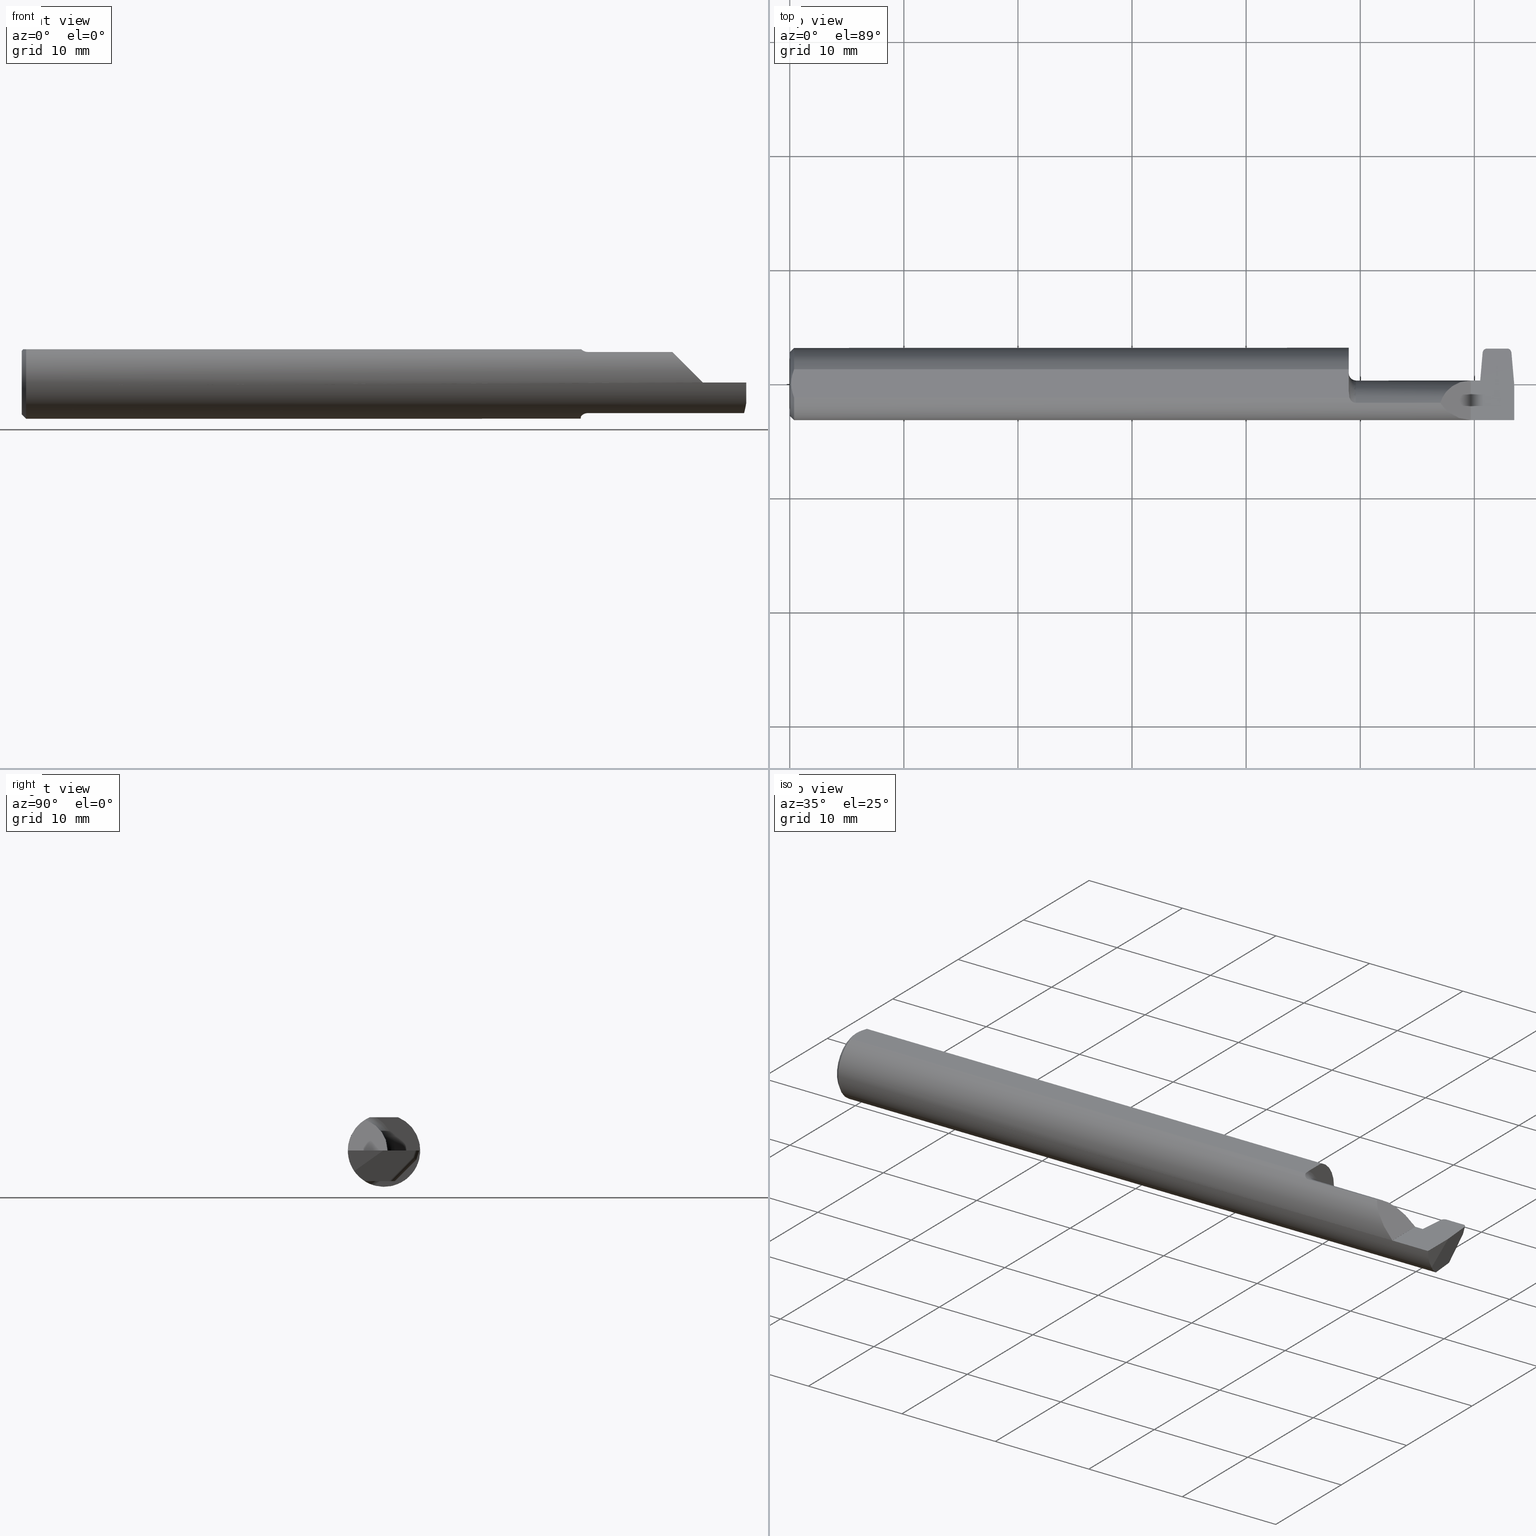
[diagram: canonical four-view strip — front | top / right | iso, engineering-drawing reading convention]
A machine part, canonical four-view strip (front | top / right | iso — engineering-drawing reading convention). The complete STEP part file that produces these views, byte-faithful:
ISO-10303-21;
HEADER;
FILE_DESCRIPTION (( 'STEP AP203' ),
    '1' );
FILE_NAME ('224801-GOR096-8.STEP',
    '2024-07-03T18:39:18',
    ( '' ),
    ( '' ),
    'SwSTEP 2.0',
    'SolidWorks 2024',
    '' );
FILE_SCHEMA (( 'CONFIG_CONTROL_DESIGN' ));
ENDSEC;

DATA;
#1 = CARTESIAN_POINT ( 'NONE',  ( 2.492585572526551108, -0.06674575881451196013, -0.1055107870327721409 ) ) ;
#2 = APPROVAL ( #852, 'UNSPECIFIED' ) ;
#3 = ADVANCED_FACE ( 'NONE', ( #646 ), #103, .F. ) ;
#4 = CARTESIAN_POINT ( 'NONE',  ( 2.472832515051678559, 0.1122803079667807763, -0.03037578868762916620 ) ) ;
#5 = FACE_OUTER_BOUND ( 'NONE', #150, .T. ) ;
#6 = ORIENTED_EDGE ( 'NONE', *, *, #826, .F. ) ;
#7 = ORIENTED_EDGE ( 'NONE', *, *, #370, .T. ) ;
#8 = FACE_OUTER_BOUND ( 'NONE', #571, .T. ) ;
#9 = LOCAL_TIME ( 11, 39, 18.00000000000000000, #177 ) ;
#10 = DIRECTION ( 'NONE',  ( 0.7071067811865382469, 0.000000000000000000, -0.7071067811865567876 ) ) ;
#11 = EDGE_LOOP ( 'NONE', ( #667, #15, #318, #409 ) ) ;
#12 = ORIENTED_EDGE ( 'NONE', *, *, #341, .T. ) ;
#13 = DIRECTION ( 'NONE',  ( 1.000000000000000000, 0.000000000000000000, 0.000000000000000000 ) ) ;
#14 = EDGE_CURVE ( 'NONE', #218, #290, #235, .T. ) ;
#15 = ORIENTED_EDGE ( 'NONE', *, *, #212, .F. ) ;
#16 = LINE ( 'NONE', #690, #726 ) ;
#17 = FACE_OUTER_BOUND ( 'NONE', #604, .T. ) ;
#18 = CARTESIAN_POINT ( 'NONE',  ( 2.350000000000000089, 0.1250000000000000000, -2.465075339897404302E-17 ) ) ;
#19 = VERTEX_POINT ( 'NONE', #558 ) ;
#20 = DIRECTION ( 'NONE',  ( 1.000000000000000000, 0.000000000000000000, 0.000000000000000000 ) ) ;
#21 = ORIENTED_EDGE ( 'NONE', *, *, #704, .T. ) ;
#22 = DIRECTION ( 'NONE',  ( -0.7071067811865475727, 0.000000000000000000, -0.7071067811865475727 ) ) ;
#23 = CARTESIAN_POINT ( 'NONE',  ( 2.383635380939345350, 0.01434521686793593931, 0.01787860665700339788 ) ) ;
#24 = VERTEX_POINT ( 'NONE', #162 ) ;
#25 = DIRECTION ( 'NONE',  ( 0.08982109674372397434, 0.3077679217474500462, 0.9472122660328096133 ) ) ;
#26 = ORIENTED_EDGE ( 'NONE', *, *, #789, .T. ) ;
#27 = AXIS2_PLACEMENT_3D ( 'NONE', #219, #229, #357 ) ;
#28 = DIRECTION ( 'NONE',  ( 0.000000000000000000, 0.7071067811865560104, -0.7071067811865390240 ) ) ;
#29 = VECTOR ( 'NONE', #659, 39.37007874015748143 ) ;
#30 = ORIENTED_EDGE ( 'NONE', *, *, #386, .F. ) ;
#31 =( LENGTH_UNIT ( ) NAMED_UNIT ( * ) SI_UNIT ( $, .METRE. ) );
#32 = CARTESIAN_POINT ( 'NONE',  ( 2.413870856177430912, -0.05524097697539397112, -0.1978970736298077682 ) ) ;
#33 = ADVANCED_FACE ( 'NONE', ( #697 ), #847, .F. ) ;
#34 = ADVANCED_FACE ( 'NONE', ( #99 ), #498, .T. ) ;
#35 = ORIENTED_EDGE ( 'NONE', *, *, #462, .T. ) ;
#36 = APPROVAL_ROLE ( '' ) ;
#37 = ORIENTED_EDGE ( 'NONE', *, *, #728, .F. ) ;
#38 = ORIENTED_EDGE ( 'NONE', *, *, #613, .F. ) ;
#39 = VERTEX_POINT ( 'NONE', #795 ) ;
#40 =( GEOMETRIC_REPRESENTATION_CONTEXT ( 3 ) GLOBAL_UNCERTAINTY_ASSIGNED_CONTEXT ( ( #179 ) ) GLOBAL_UNIT_ASSIGNED_CONTEXT ( ( #375, #706, #308 ) ) REPRESENTATION_CONTEXT ( 'NONE', 'WORKASPACE' ) );
#41 = CIRCLE ( 'NONE', #523, 0.1098500000000004473 ) ;
#42 = ORIENTED_EDGE ( 'NONE', *, *, #581, .T. ) ;
#43 = ADVANCED_FACE ( 'NONE', ( #734 ), #136, .F. ) ;
#44 = ORIENTED_EDGE ( 'NONE', *, *, #838, .T. ) ;
#45 = DIRECTION ( 'NONE',  ( 2.537120186194367421E-15, -0.7071067811865561215, 0.7071067811865389130 ) ) ;
#46 = VERTEX_POINT ( 'NONE', #661 ) ;
#47 = PERSON_AND_ORGANIZATION_ROLE ( 'creator' ) ;
#48 = EDGE_LOOP ( 'NONE', ( #184, #823, #363, #648 ) ) ;
#49 = VECTOR ( 'NONE', #806, 39.37007874015748854 ) ;
#50 = LINE ( 'NONE', #582, #714 ) ;
#51 = CARTESIAN_POINT ( 'NONE',  ( 0.000000000000000000, 0.000000000000000000, 0.000000000000000000 ) ) ;
#52 = DIRECTION ( 'NONE',  ( -0.02528153024484449535, 0.7068807693764397326, 0.7068807693764569411 ) ) ;
#53 = ORIENTED_EDGE ( 'NONE', *, *, #807, .T. ) ;
#54 = AXIS2_PLACEMENT_3D ( 'NONE', #81, #368, #295 ) ;
#55 = CARTESIAN_POINT ( 'NONE',  ( 2.381440164071409349, 0.01215000000000003577, 0.000000000000000000 ) ) ;
#56 = AXIS2_PLACEMENT_3D ( 'NONE', #106, #45, #858 ) ;
#57 = DIRECTION ( 'NONE',  ( 0.000000000000000000, -1.000000000000000000, 0.000000000000000000 ) ) ;
#58 = APPROVAL ( #566, 'UNSPECIFIED' ) ;
#59 = CARTESIAN_POINT ( 'NONE',  ( 2.470561165577813689, 0.03714530962163960920, -0.1055107870327721409 ) ) ;
#60 = EDGE_CURVE ( 'NONE', #476, #433, #725, .T. ) ;
#61 = CARTESIAN_POINT ( 'NONE',  ( 2.306362915931965851, -0.1247271782974887222, 0.04398708406803463616 ) ) ;
#62 =( BOUNDED_CURVE ( )  B_SPLINE_CURVE ( 3, ( #561, #419, #629, #679 ),
 .UNSPECIFIED., .F., .T. ) 
 B_SPLINE_CURVE_WITH_KNOTS ( ( 4, 4 ),
 ( 1.326450231515703182, 1.570796326794911879 ),
 .UNSPECIFIED. ) 
 CURVE ( )  GEOMETRIC_REPRESENTATION_ITEM ( )  RATIONAL_B_SPLINE_CURVE ( ( 1.000000000000000000, 0.9950307677608811741, 0.9950307677608811741, 1.000000000000000000 ) ) 
 REPRESENTATION_ITEM ( '' )  );
#63 = DIRECTION ( 'NONE',  ( 0.000000000000000000, -0.1218693434051477398, -0.9925461516413219831 ) ) ;
#64 = B_SPLINE_CURVE_WITH_KNOTS ( 'NONE', 3,
 ( #188, #263, #572, #778, #451, #501 ),
 .UNSPECIFIED., .F., .F.,
 ( 4, 2, 4 ),
 ( 0.000000000000000000, 0.0004112572997248619506, 0.0008225145994497239012 ),
 .UNSPECIFIED. ) ;
#65 = CARTESIAN_POINT ( 'NONE',  ( 1.929890775228045419, -0.04165898946242330841, 0.1148500000000000076 ) ) ;
#66 = VERTEX_POINT ( 'NONE', #395 ) ;
#67 = CARTESIAN_POINT ( 'NONE',  ( 0.009468318732755824640, -0.03334632524505316137, 0.1148499999999999660 ) ) ;
#68 = DIRECTION ( 'NONE',  ( 0.000000000000000000, 0.000000000000000000, -1.000000000000000000 ) ) ;
#69 = VECTOR ( 'NONE', #143, 39.37007874015748854 ) ;
#70 = EDGE_CURVE ( 'NONE', #309, #141, #656, .T. ) ;
#71 = DIRECTION ( 'NONE',  ( 0.000000000000000000, 0.000000000000000000, 1.000000000000000000 ) ) ;
#72 = CARTESIAN_POINT ( 'NONE',  ( 2.350000000000000089, -0.1248495094103296982, 0.0003500000000002680654 ) ) ;
#73 = APPLICATION_CONTEXT ( 'configuration controlled 3d designs of mechanical parts and assemblies' ) ;
#74 = AXIS2_PLACEMENT_3D ( 'NONE', #371, #169, #635 ) ;
#75 = LINE ( 'NONE', #204, #401 ) ;
#76 = LINE ( 'NONE', #733, #867 ) ;
#77 = ORIENTED_EDGE ( 'NONE', *, *, #492, .T. ) ;
#78 = CARTESIAN_POINT ( 'NONE',  ( 2.350000000000000089, -0.1248500000000000026, -2.465075339897404302E-17 ) ) ;
#79 = ORIENTED_EDGE ( 'NONE', *, *, #212, .T. ) ;
#80 = LOCAL_TIME ( 11, 39, 18.00000000000000000, #712 ) ;
#81 = CARTESIAN_POINT ( 'NONE',  ( 0.01499999999999915637, 0.000000000000000000, 0.000000000000000000 ) ) ;
#82 = VERTEX_POINT ( 'NONE', #193 ) ;
#83 = DIRECTION ( 'NONE',  ( -1.000000000000000000, 2.748415254070958379E-15, 0.000000000000000000 ) ) ;
#84 = CARTESIAN_POINT ( 'NONE',  ( 2.381440164071409349, 0.1621500000000000163, 0.000000000000000000 ) ) ;
#85 = DIRECTION ( 'NONE',  ( 0.000000000000000000, -1.000000000000000000, 0.000000000000000000 ) ) ;
#86 = ORIENTED_EDGE ( 'NONE', *, *, #411, .F. ) ;
#87 = CLOSED_SHELL ( 'NONE', ( #438, #675, #132, #297, #299, #168, #429, #717, #337, #813, #34, #849, #771, #146, #586, #721, #33, #43, #195, #3, #189, #284, #440, #187, #579 ) ) ;
#88 = LINE ( 'NONE', #410, #509 ) ;
#89 = DIRECTION ( 'NONE',  ( -1.000000000000000000, 0.000000000000000000, 0.000000000000000000 ) ) ;
#90 = ORIENTED_EDGE ( 'NONE', *, *, #402, .T. ) ;
#91 = DIRECTION ( 'NONE',  ( 0.08715574274765244822, 0.9961946980917459893, 0.000000000000000000 ) ) ;
#92 = DIRECTION ( 'NONE',  ( -1.000000000000000000, -0.000000000000000000, -0.000000000000000000 ) ) ;
#93 = DIRECTION ( 'NONE',  ( -1.000000000000000000, -0.000000000000000000, -0.000000000000000000 ) ) ;
#94 = ORIENTED_EDGE ( 'NONE', *, *, #704, .F. ) ;
#95 = EDGE_CURVE ( 'NONE', #348, #768, #264, .T. ) ;
#96 = AXIS2_PLACEMENT_3D ( 'NONE', #352, #738, #71 ) ;
#97 = CARTESIAN_POINT ( 'NONE',  ( 2.382440164071409239, 0.01215000000000003230, 0.000000000000000000 ) ) ;
#98 = AXIS2_PLACEMENT_3D ( 'NONE', #84, #595, #289 ) ;
#99 = FACE_OUTER_BOUND ( 'NONE', #316, .T. ) ;
#100 = DIRECTION ( 'NONE',  ( 1.000000000000000000, 0.000000000000000000, 0.000000000000000000 ) ) ;
#101 = VERTEX_POINT ( 'NONE', #657 ) ;
#102 = DIRECTION ( 'NONE',  ( 0.000000000000000000, -0.8154497401906256604, -0.5788278856646776882 ) ) ;
#103 = PLANE ( 'NONE',  #569 ) ;
#104 = APPLICATION_CONTEXT ( 'configuration controlled 3d designs of mechanical parts and assemblies' ) ;
#105 = COORDINATED_UNIVERSAL_TIME_OFFSET ( 8, 0, .BEHIND. ) ;
#106 = CARTESIAN_POINT ( 'NONE',  ( 2.510000000000000231, -0.05352195167279214655, -0.1961780483272062559 ) ) ;
#107 = PRODUCT ( '224801-GOR096-8', '224801-GOR096-8', '', ( #323 ) ) ;
#108 = EDGE_LOOP ( 'NONE', ( #705, #35, #563 ) ) ;
#109 = EDGE_CURVE ( 'NONE', #24, #422, #475, .T. ) ;
#110 = VERTEX_POINT ( 'NONE', #798 ) ;
#111 = LINE ( 'NONE', #171, #735 ) ;
#112 = VECTOR ( 'NONE', #135, 39.37007874015748143 ) ;
#113 = ORIENTED_EDGE ( 'NONE', *, *, #157, .T. ) ;
#114 = DATE_AND_TIME ( #559, #80 ) ;
#115 = ORIENTED_EDGE ( 'NONE', *, *, #687, .F. ) ;
#116 = DIRECTION ( 'NONE',  ( 0.08715574274765244822, 0.9961946980917459893, 0.000000000000000000 ) ) ;
#117 = ORIENTED_EDGE ( 'NONE', *, *, #728, .T. ) ;
#118 = CALENDAR_DATE ( 2024, 3, 7 ) ;
#119 = ORIENTED_EDGE ( 'NONE', *, *, #134, .T. ) ;
#120 = CIRCLE ( 'NONE', #503, 0.1248500000000000026 ) ;
#121 = CARTESIAN_POINT ( 'NONE',  ( 2.390849541543781154, 0.1082696243428798999, 0.000000000000000000 ) ) ;
#122 = CARTESIAN_POINT ( 'NONE',  ( 2.473248042727177243, 0.1122713707487828783, -0.03038472590562707118 ) ) ;
#123 = DIRECTION ( 'NONE',  ( 0.000000000000000000, 0.000000000000000000, 1.000000000000000000 ) ) ;
#124 = CARTESIAN_POINT ( 'NONE',  ( 2.413870856177430912, -0.06584757869319229906, -0.1872904719120096761 ) ) ;
#125 = EDGE_CURVE ( 'NONE', #619, #428, #594, .T. ) ;
#126 = EDGE_CURVE ( 'NONE', #743, #19, #120, .T. ) ;
#127 = APPROVAL_PERSON_ORGANIZATION ( #776, #58, #36 ) ;
#128 = CARTESIAN_POINT ( 'NONE',  ( 1.930717012709729064, -0.05032294001735261590, -0.1144560936867380085 ) ) ;
#129 = PLANE ( 'NONE',  #831 ) ;
#130 = DIRECTION ( 'NONE',  ( -1.000000000000000000, -0.000000000000000000, -0.000000000000000000 ) ) ;
#131 = CARTESIAN_POINT ( 'NONE',  ( 2.483716296193213768, 0.1221499999999995228, -1.707404996040164203E-17 ) ) ;
#132 = ADVANCED_FACE ( 'NONE', ( #186 ), #729, .T. ) ;
#133 = CARTESIAN_POINT ( 'NONE',  ( 2.393139006029896709, 0.1004248779263812036, -0.02414364689937367400 ) ) ;
#134 = EDGE_CURVE ( 'NONE', #683, #743, #772, .T. ) ;
#135 = DIRECTION ( 'NONE',  ( -1.000000000000000000, -0.000000000000000000, -0.000000000000000000 ) ) ;
#136 = PLANE ( 'NONE',  #689 ) ;
#137 = DIRECTION ( 'NONE',  ( 0.000000000000000000, 0.000000000000000000, 1.000000000000000000 ) ) ;
#138 = AXIS2_PLACEMENT_3D ( 'NONE', #140, #468, #477 ) ;
#139 = ORIENTED_EDGE ( 'NONE', *, *, #265, .F. ) ;
#140 = CARTESIAN_POINT ( 'NONE',  ( 0.000000000000000000, 0.1000000000000000056, 0.1148500000000000076 ) ) ;
#141 = VERTEX_POINT ( 'NONE', #330 ) ;
#142 = LINE ( 'NONE', #329, #362 ) ;
#143 = DIRECTION ( 'NONE',  ( -0.1109828012386699508, 0.1211164744642413138, 0.9864145261717157664 ) ) ;
#144 = CARTESIAN_POINT ( 'NONE',  ( 2.500000000000000000, -0.1248499999999999888, -2.465075339897403686E-17 ) ) ;
#145 = CARTESIAN_POINT ( 'NONE',  ( 2.473248042727177243, 0.1122713707487828783, -0.03038472590562707118 ) ) ;
#146 = ADVANCED_FACE ( 'NONE', ( #518 ), #585, .F. ) ;
#147 = CARTESIAN_POINT ( 'NONE',  ( 1.929000000000000048, -0.03544785385794577137, -0.1197120384792846048 ) ) ;
#148 = LOCAL_TIME ( 11, 39, 18.00000000000000000, #312 ) ;
#149 = DIRECTION ( 'NONE',  ( 0.08715574274765255924, -0.9961946980917459893, 0.000000000000000000 ) ) ;
#150 = EDGE_LOOP ( 'NONE', ( #791, #782, #26, #810, #158, #751, #44 ) ) ;
#151 = VECTOR ( 'NONE', #194, 39.37007874015748143 ) ;
#152 = CARTESIAN_POINT ( 'NONE',  ( 2.350000000000000089, 0.1250000000000000000, -2.465075339897404302E-17 ) ) ;
#153 = VERTEX_POINT ( 'NONE', #460 ) ;
#154 = DIRECTION ( 'NONE',  ( -1.000000000000000000, 5.798179531152436607E-15, 9.386209307839249291E-15 ) ) ;
#155 = VECTOR ( 'NONE', #839, 39.37007874015748854 ) ;
#156 = CARTESIAN_POINT ( 'NONE',  ( 2.500000000000000000, -0.1248500000000000026, -2.465075339897404302E-17 ) ) ;
#157 = EDGE_CURVE ( 'NONE', #101, #381, #564, .T. ) ;
#158 = ORIENTED_EDGE ( 'NONE', *, *, #589, .F. ) ;
#159 = DIRECTION ( 'NONE',  ( 0.000000000000000000, 0.000000000000000000, -1.000000000000000000 ) ) ;
#160 = ORIENTED_EDGE ( 'NONE', *, *, #682, .T. ) ;
#161 = DIRECTION ( 'NONE',  ( -0.7071067811865474617, 0.000000000000000000, 0.7071067811865474617 ) ) ;
#162 = CARTESIAN_POINT ( 'NONE',  ( 2.473248042727177243, 0.1122713707487828783, -0.03038472590562707118 ) ) ;
#163 = CARTESIAN_POINT ( 'NONE',  ( 2.402775102586078848, 0.03714530962163931083, -0.1055107870327721131 ) ) ;
#164 = ORIENTED_EDGE ( 'NONE', *, *, #254, .T. ) ;
#165 = AXIS2_PLACEMENT_3D ( 'NONE', #829, #350, #684 ) ;
#166 = CARTESIAN_POINT ( 'NONE',  ( 1.953999999999999959, -0.09784999999999999254, 0.000000000000000000 ) ) ;
#167 = VECTOR ( 'NONE', #92, 39.37007874015748143 ) ;
#168 = ADVANCED_FACE ( 'NONE', ( #573 ), #732, .F. ) ;
#169 = DIRECTION ( 'NONE',  ( 1.000000000000000000, 0.000000000000000000, 0.000000000000000000 ) ) ;
#170 = PERSON_AND_ORGANIZATION ( #745, #314 ) ;
#171 = CARTESIAN_POINT ( 'NONE',  ( 2.500000000000000000, 0.1250000000000000000, -2.465075339897404302E-17 ) ) ;
#172 = VERTEX_POINT ( 'NONE', #413 ) ;
#173 = CALENDAR_DATE ( 2024, 3, 7 ) ;
#174 = ORIENTED_EDGE ( 'NONE', *, *, #623, .T. ) ;
#175 = LINE ( 'NONE', #854, #513 ) ;
#176 = CARTESIAN_POINT ( 'NONE',  ( 2.382440164071409239, 0.01215000000000003230, 0.000000000000000000 ) ) ;
#177 = COORDINATED_UNIVERSAL_TIME_OFFSET ( 8, 0, .BEHIND. ) ;
#178 = ORIENTED_EDGE ( 'NONE', *, *, #502, .F. ) ;
#179 = UNCERTAINTY_MEASURE_WITH_UNIT (LENGTH_MEASURE( 1.000000000000000082E-05 ), #375, 'distance_accuracy_value', 'NONE');
#180 = CARTESIAN_POINT ( 'NONE',  ( 2.396049094836009363, 0.01905773779298472470, -0.1055107870327721409 ) ) ;
#181 = CIRCLE ( 'NONE', #424, 0.1248500000000000026 ) ;
#182 = VERTEX_POINT ( 'NONE', #156 ) ;
#183 = PERSON_AND_ORGANIZATION ( #745, #314 ) ;
#184 = ORIENTED_EDGE ( 'NONE', *, *, #60, .F. ) ;
#185 = CARTESIAN_POINT ( 'NONE',  ( 2.405414880592574800, 0.1221499999999999669, -2.465075339897404302E-17 ) ) ;
#186 = FACE_OUTER_BOUND ( 'NONE', #601, .T. ) ;
#187 = ADVANCED_FACE ( 'NONE', ( #282 ), #681, .T. ) ;
#188 = CARTESIAN_POINT ( 'NONE',  ( 1.953999999999999959, -0.06674575881451194626, 0.1055107870327721409 ) ) ;
#189 = ADVANCED_FACE ( 'NONE', ( #756 ), #486, .T. ) ;
#190 = CARTESIAN_POINT ( 'NONE',  ( 2.486889169226756291, 0.1072251711974559485, -0.02823854053471744688 ) ) ;
#191 = FACE_OUTER_BOUND ( 'NONE', #642, .T. ) ;
#192 = AXIS2_PLACEMENT_3D ( 'NONE', #398, #736, #137 ) ;
#193 = CARTESIAN_POINT ( 'NONE',  ( 2.408295319066841689, 0.1122803079667811649, -0.03037578868762856252 ) ) ;
#194 = DIRECTION ( 'NONE',  ( 0.000000000000000000, -0.1218693434051476704, -0.9925461516413219831 ) ) ;
#195 = ADVANCED_FACE ( 'NONE', ( #671 ), #536, .F. ) ;
#196 = ORIENTED_EDGE ( 'NONE', *, *, #863, .T. ) ;
#197 = DIRECTION ( 'NONE',  ( 0.000000000000000000, -0.3090169943749355719, -0.9510565162951573059 ) ) ;
#198 = CARTESIAN_POINT ( 'NONE',  ( 2.470561165577813689, 0.03714530962163960920, -0.1055107870327721409 ) ) ;
#199 = EDGE_LOOP ( 'NONE', ( #598, #611, #86, #785 ) ) ;
#200 = CARTESIAN_POINT ( 'NONE',  ( 0.005933586687556474670, -0.01676171734555376158, 0.1148500000000000215 ) ) ;
#201 = DIRECTION ( 'NONE',  ( 0.08715574274765255924, -0.9961946980917459893, 0.000000000000000000 ) ) ;
#202 = ORIENTED_EDGE ( 'NONE', *, *, #464, .F. ) ;
#203 = AXIS2_PLACEMENT_3D ( 'NONE', #18, #749, #817 ) ;
#204 = CARTESIAN_POINT ( 'NONE',  ( 2.488809237271968122, 0.1233638167132798807, -0.001204708112474771765 ) ) ;
#205 = APPROVAL_DATE_TIME ( #388, #453 ) ;
#206 = CARTESIAN_POINT ( 'NONE',  ( 2.500000000000000000, 0.06674575881451200177, -0.1055107870327721409 ) ) ;
#207 = VECTOR ( 'NONE', #832, 39.37007874015748854 ) ;
#208 = ORIENTED_EDGE ( 'NONE', *, *, #457, .F. ) ;
#209 = ORIENTED_EDGE ( 'NONE', *, *, #254, .F. ) ;
#210 = CARTESIAN_POINT ( 'NONE',  ( 2.394311322083690019, -0.0008050956563388014797, -0.1055107870327721409 ) ) ;
#211 = ORIENTED_EDGE ( 'NONE', *, *, #462, .F. ) ;
#212 = EDGE_CURVE ( 'NONE', #428, #422, #75, .T. ) ;
#213 = CARTESIAN_POINT ( 'NONE',  ( 2.350000000000000089, -0.09784999999999999254, 0.000000000000000000 ) ) ;
#214 = ORIENTED_EDGE ( 'NONE', *, *, #807, .F. ) ;
#215 =( BOUNDED_CURVE ( )  B_SPLINE_CURVE ( 3, ( #539, #677, #163, #764 ),
 .UNSPECIFIED., .F., .F. ) 
 B_SPLINE_CURVE_WITH_KNOTS ( ( 4, 4 ),
 ( 4.885547232848827193, 6.308461453210429504 ),
 .UNSPECIFIED. ) 
 CURVE ( )  GEOMETRIC_REPRESENTATION_ITEM ( )  RATIONAL_B_SPLINE_CURVE ( ( 1.000000000000000000, 0.8382741850914522397, 0.8382741850914522397, 1.000000000000000000 ) ) 
 REPRESENTATION_ITEM ( '' )  );
#216 = EDGE_CURVE ( 'NONE', #307, #476, #300, .T. ) ;
#217 = VERTEX_POINT ( 'NONE', #406 ) ;
#218 = VERTEX_POINT ( 'NONE', #599 ) ;
#219 = CARTESIAN_POINT ( 'NONE',  ( 2.465931449155869259, 0.07436827034498610933, -0.09851602307450181562 ) ) ;
#220 = ORIENTED_EDGE ( 'NONE', *, *, #386, .T. ) ;
#221 = CARTESIAN_POINT ( 'NONE',  ( 2.244839212967228104, -0.06674575881451198789, 0.1055107870327721131 ) ) ;
#222 = VERTEX_POINT ( 'NONE', #78 ) ;
#223 = DIRECTION ( 'NONE',  ( -0.000000000000000000, 0.000000000000000000, 1.000000000000000000 ) ) ;
#224 = ORIENTED_EDGE ( 'NONE', *, *, #691, .T. ) ;
#225 = TOROIDAL_SURFACE ( 'NONE', #710, 0.1350000000000000366, 0.02500000000000000139 ) ;
#226 = CARTESIAN_POINT ( 'NONE',  ( 2.259116973875248569, -0.01831320643403844262, 0.09123302612475124584 ) ) ;
#227 = AXIS2_PLACEMENT_3D ( 'NONE', #557, #827, #760 ) ;
#228 = LINE ( 'NONE', #685, #380 ) ;
#229 = DIRECTION ( 'NONE',  ( -0.08982109674372396046, -0.3077679217474501017, -0.9472122660328096133 ) ) ;
#230 = EDGE_CURVE ( 'NONE', #447, #820, #365, .T. ) ;
#231 = ORIENTED_EDGE ( 'NONE', *, *, #502, .T. ) ;
#232 = FACE_OUTER_BOUND ( 'NONE', #546, .T. ) ;
#233 = ORIENTED_EDGE ( 'NONE', *, *, #742, .F. ) ;
#234 = CARTESIAN_POINT ( 'NONE',  ( 2.500000000000000000, -0.1027548813330047828, -0.07091513845604555111 ) ) ;
#235 = LINE ( 'NONE', #238, #155 ) ;
#236 = LINE ( 'NONE', #487, #332 ) ;
#237 = DIRECTION ( 'NONE',  ( 1.000000000000000000, 0.000000000000000000, 0.000000000000000000 ) ) ;
#238 = CARTESIAN_POINT ( 'NONE',  ( 2.465931449155869259, 0.08863411808941344672, -0.1031512779901258559 ) ) ;
#239 = SECURITY_CLASSIFICATION_LEVEL ( 'unclassified' ) ;
#240 = ORIENTED_EDGE ( 'NONE', *, *, #850, .F. ) ;
#241 = AXIS2_PLACEMENT_3D ( 'NONE', #213, #750, #305 ) ;
#242 = CARTESIAN_POINT ( 'NONE',  ( 2.472971384954952612, 0.1122803079667808318, -0.03037578868762913151 ) ) ;
#243 = ORIENTED_EDGE ( 'NONE', *, *, #565, .T. ) ;
#244 = LENGTH_MEASURE_WITH_UNIT ( LENGTH_MEASURE( 0.02539999999999999897 ), #31 );
#245 = ORIENTED_EDGE ( 'NONE', *, *, #353, .T. ) ;
#246 = CARTESIAN_POINT ( 'NONE',  ( 2.408156449163568080, 0.1122803079667811926, -0.03037578868762852782 ) ) ;
#247 = DIRECTION ( 'NONE',  ( 0.9887692138764512251, -0.08650609705762352108, 0.1218693434051477675 ) ) ;
#248 = LINE ( 'NONE', #507, #814 ) ;
#249 = EDGE_LOOP ( 'NONE', ( #283, #766, #37, #164 ) ) ;
#250 = PERSON_AND_ORGANIZATION ( #745, #314 ) ;
#251 = CARTESIAN_POINT ( 'NONE',  ( 0.004999999999933147331, 5.639788019834102201E-15, 0.1148500000000000076 ) ) ;
#252 = VECTOR ( 'NONE', #52, 39.37007874015748143 ) ;
#253 = CC_DESIGN_PERSON_AND_ORGANIZATION_ASSIGNMENT ( #575, #514, ( #809 ) ) ;
#254 = EDGE_CURVE ( 'NONE', #222, #348, #343, .T. ) ;
#255 = AXIS2_PLACEMENT_3D ( 'NONE', #769, #22, #161 ) ;
#256 = CARTESIAN_POINT ( 'NONE',  ( 1.950021003568510602, -0.06674575881451194626, -0.1055107870327721131 ) ) ;
#257 = EDGE_CURVE ( 'NONE', #591, #683, #417, .T. ) ;
#258 =( BOUNDED_CURVE ( )  B_SPLINE_CURVE ( 3, ( #431, #242, #834, #145 ),
 .UNSPECIFIED., .F., .T. ) 
 B_SPLINE_CURVE_WITH_KNOTS ( ( 4, 4 ),
 ( 3.095858431787206655, 3.123519265815130730 ),
 .UNSPECIFIED. ) 
 CURVE ( )  GEOMETRIC_REPRESENTATION_ITEM ( )  RATIONAL_B_SPLINE_CURVE ( ( 1.000000000000000000, 0.9999362408714058681, 0.9999362408714058681, 1.000000000000000000 ) ) 
 REPRESENTATION_ITEM ( '' )  );
#259 = PERSON_AND_ORGANIZATION ( #745, #314 ) ;
#260 = ORIENTED_EDGE ( 'NONE', *, *, #589, .T. ) ;
#261 = CARTESIAN_POINT ( 'NONE',  ( 0.004999999999999684384, 0.008366382319371040363, 0.1148500000000000076 ) ) ;
#262 = CARTESIAN_POINT ( 'NONE',  ( 2.481027608405882212, 0.1119358386747919820, -0.03072025797961759272 ) ) ;
#263 = CARTESIAN_POINT ( 'NONE',  ( 1.948512926777242082, -0.06674575881451194626, 0.1055107870327721686 ) ) ;
#264 = LINE ( 'NONE', #452, #763 ) ;
#265 = EDGE_CURVE ( 'NONE', #758, #46, #274, .T. ) ;
#266 = CARTESIAN_POINT ( 'NONE',  ( 2.381440164071409349, 0.01215000000000003577, 0.000000000000000000 ) ) ;
#267 = VECTOR ( 'NONE', #478, 39.37007874015748143 ) ;
#268 = CARTESIAN_POINT ( 'NONE',  ( 2.372128570000000991, 0.09124830056250644861, -0.09510565162951591101 ) ) ;
#269 = AXIS2_PLACEMENT_3D ( 'NONE', #206, #471, #461 ) ;
#270 = CARTESIAN_POINT ( 'NONE',  ( 2.475712953525945892, 0.1221499999999997865, -2.465075339897404302E-17 ) ) ;
#271 = EDGE_LOOP ( 'NONE', ( #178, #346, #533, #119, #94, #780 ) ) ;
#272 = CARTESIAN_POINT ( 'NONE',  ( 2.407879791391343449, 0.1122713707487832530, -0.03038472590562643627 ) ) ;
#273 = CARTESIAN_POINT ( 'NONE',  ( 1.931165089549962133, -0.04895916665957456698, 0.1148500000000000076 ) ) ;
#274 = LINE ( 'NONE', #541, #574 ) ;
#275 = DIRECTION ( 'NONE',  ( -0.9887692138764512251, -0.08650609705762361823, 0.1218693434051477675 ) ) ;
#276 = ORIENTED_EDGE ( 'NONE', *, *, #754, .T. ) ;
#277 = LOCAL_TIME ( 11, 39, 18.00000000000000000, #105 ) ;
#278 = ADVANCED_BREP_SHAPE_REPRESENTATION ( '224801-GOR096-8', ( #376, #497 ), #40 ) ;
#279 = ORIENTED_EDGE ( 'NONE', *, *, #126, .F. ) ;
#280 = EDGE_CURVE ( 'NONE', #777, #768, #822, .T. ) ;
#281 = AXIS2_PLACEMENT_3D ( 'NONE', #354, #100, #474 ) ;
#282 = FACE_OUTER_BOUND ( 'NONE', #294, .T. ) ;
#283 = ORIENTED_EDGE ( 'NONE', *, *, #863, .F. ) ;
#284 = ADVANCED_FACE ( 'NONE', ( #532 ), #338, .T. ) ;
#285 = CARTESIAN_POINT ( 'NONE',  ( 2.378172693961768669, 0.008882529890359607341, -0.02661140851596372967 ) ) ;
#286 = AXIS2_PLACEMENT_3D ( 'NONE', #306, #553, #310 ) ;
#287 = ORIENTED_EDGE ( 'NONE', *, *, #554, .F. ) ;
#288 = ORIENTED_EDGE ( 'NONE', *, *, #528, .F. ) ;
#289 = DIRECTION ( 'NONE',  ( 0.1218693434051477398, 0.000000000000000000, 0.9925461516413219831 ) ) ;
#290 = VERTEX_POINT ( 'NONE', #4 ) ;
#291 = CARTESIAN_POINT ( 'NONE',  ( 1.929000000000000270, 0.008882529890361513802, -0.02661140851595602055 ) ) ;
#292 = CARTESIAN_POINT ( 'NONE',  ( 2.350000000000000089, 0.1221500000000001196, -2.465075339897404302E-17 ) ) ;
#293 = LINE ( 'NONE', #545, #430 ) ;
#294 = EDGE_LOOP ( 'NONE', ( #515, #333, #788, #678, #418 ) ) ;
#295 = DIRECTION ( 'NONE',  ( 0.000000000000000000, 0.000000000000000000, -1.000000000000000000 ) ) ;
#296 = EDGE_LOOP ( 'NONE', ( #693, #700, #260 ) ) ;
#297 = ADVANCED_FACE ( 'NONE', ( #811 ), #616, .F. ) ;
#298 = CYLINDRICAL_SURFACE ( 'NONE', #624, 0.01499999999999999424 ) ;
#299 = ADVANCED_FACE ( 'NONE', ( #8 ), #610, .F. ) ;
#300 = LINE ( 'NONE', #676, #69 ) ;
#301 = CYLINDRICAL_SURFACE ( 'NONE', #165, 0.1100000000000000422 ) ;
#302 = AXIS2_PLACEMENT_3D ( 'NONE', #166, #237, #843 ) ;
#303 = CARTESIAN_POINT ( 'NONE',  ( 2.394311322083690019, -0.06674575881451196013, -0.1055107870327721409 ) ) ;
#304 = ORIENTED_EDGE ( 'NONE', *, *, #265, .T. ) ;
#305 = DIRECTION ( 'NONE',  ( 0.000000000000000000, 0.000000000000000000, 1.000000000000000000 ) ) ;
#306 = CARTESIAN_POINT ( 'NONE',  ( 0.000000000000000000, 0.000000000000000000, 0.000000000000000000 ) ) ;
#307 = VERTEX_POINT ( 'NONE', #210 ) ;
#308 =( NAMED_UNIT ( * ) SI_UNIT ( $, .STERADIAN. ) SOLID_ANGLE_UNIT ( ) );
#309 = VERTEX_POINT ( 'NONE', #147 ) ;
#310 = DIRECTION ( 'NONE',  ( 0.000000000000000000, 0.000000000000000000, -1.000000000000000000 ) ) ;
#311 = ORIENTED_EDGE ( 'NONE', *, *, #565, .F. ) ;
#312 = COORDINATED_UNIVERSAL_TIME_OFFSET ( 8, 0, .BEHIND. ) ;
#313 = EDGE_CURVE ( 'NONE', #447, #141, #293, .T. ) ;
#314 = ORGANIZATION ( 'UNSPECIFIED', 'UNSPECIFIED', '' ) ;
#315 = CARTESIAN_POINT ( 'NONE',  ( 0.009419795109434097105, 0.03314228182474765472, 0.1148499999999999938 ) ) ;
#316 = EDGE_LOOP ( 'NONE', ( #231, #245, #387 ) ) ;
#317 = CARTESIAN_POINT ( 'NONE',  ( 2.391577508731532742, 0.1165903273735736934, -3.414809992080329023E-17 ) ) ;
#318 = ORIENTED_EDGE ( 'NONE', *, *, #125, .F. ) ;
#319 = PERSON_AND_ORGANIZATION_ROLE ( 'design_supplier' ) ;
#320 = ORIENTED_EDGE ( 'NONE', *, *, #457, .T. ) ;
#321 = LINE ( 'NONE', #327, #29 ) ;
#322 = EDGE_CURVE ( 'NONE', #606, #447, #425, .T. ) ;
#323 = MECHANICAL_CONTEXT ( 'NONE', #73, 'mechanical' ) ;
#324 = CARTESIAN_POINT ( 'NONE',  ( 0.01192863036854219932, 0.04112691532340072287, 0.1148500000000000215 ) ) ;
#325 = AXIS2_PLACEMENT_3D ( 'NONE', #580, #130, #722 ) ;
#326 = DIRECTION ( 'NONE',  ( -2.118347822640888778E-15, -0.9925461516413219831, 0.1218693434051477398 ) ) ;
#327 = CARTESIAN_POINT ( 'NONE',  ( 2.500000000000000000, 0.03714530962163971328, -0.1055107870327721409 ) ) ;
#328 = CARTESIAN_POINT ( 'NONE',  ( 1.936931173230982406, -0.05931078277131174997, -0.1099137017871685690 ) ) ;
#329 = CARTESIAN_POINT ( 'NONE',  ( 2.467345738887416040, -0.05275918867292979375, -0.1954152853273437296 ) ) ;
#330 = CARTESIAN_POINT ( 'NONE',  ( 1.953999999999999959, -0.06674575881451194626, -0.1055107870327721409 ) ) ;
#331 = CARTESIAN_POINT ( 'NONE',  ( 1.929000000000000048, -0.02689594796630699614, 0.1148500000000000076 ) ) ;
#332 = VECTOR ( 'NONE', #618, 39.37007874015748143 ) ;
#333 = ORIENTED_EDGE ( 'NONE', *, *, #555, .F. ) ;
#334 = CARTESIAN_POINT ( 'NONE',  ( 2.394238664891763957, 0.1072251711974565314, -0.02823854053471680503 ) ) ;
#335 = VECTOR ( 'NONE', #10, 39.37007874015748143 ) ;
#336 = DIRECTION ( 'NONE',  ( -1.000000000000000000, -0.000000000000000000, -0.000000000000000000 ) ) ;
#337 = ADVANCED_FACE ( 'NONE', ( #479 ), #485, .F. ) ;
#338 = CYLINDRICAL_SURFACE ( 'NONE', #27, 0.01499999999999999424 ) ;
#339 = CARTESIAN_POINT ( 'NONE',  ( 2.500000000000000000, -0.04895916665957456698, 0.1148500000000000076 ) ) ;
#340 = EDGE_CURVE ( 'NONE', #82, #420, #88, .T. ) ;
#341 = EDGE_CURVE ( 'NONE', #290, #24, #258, .T. ) ;
#342 = ORIENTED_EDGE ( 'NONE', *, *, #789, .F. ) ;
#343 = LINE ( 'NONE', #152, #755 ) ;
#344 = VERTEX_POINT ( 'NONE', #615 ) ;
#345 = CARTESIAN_POINT ( 'NONE',  ( 0.000000000000000000, 0.000000000000000000, 0.000000000000000000 ) ) ;
#346 = ORIENTED_EDGE ( 'NONE', *, *, #623, .F. ) ;
#347 = B_SPLINE_CURVE_WITH_KNOTS ( 'NONE', 3,
 ( #273, #65, #730, #331 ),
 .UNSPECIFIED., .F., .F.,
 ( 4, 4 ),
 ( 2.168404344971008868E-19, 0.0005630975672748610161 ),
 .UNSPECIFIED. ) ;
#348 = VERTEX_POINT ( 'NONE', #544 ) ;
#349 = DIRECTION ( 'NONE',  ( 0.7071067811865382469, 8.659560562355046257E-17, 0.7071067811865567876 ) ) ;
#350 = DIRECTION ( 'NONE',  ( -1.000000000000000000, -0.000000000000000000, -0.000000000000000000 ) ) ;
#351 = CARTESIAN_POINT ( 'NONE',  ( 2.500000000000000000, -0.06674575881451196013, -0.1055107870327721409 ) ) ;
#352 = CARTESIAN_POINT ( 'NONE',  ( 2.394311322083690019, -0.09784999999999999254, 0.000000000000000000 ) ) ;
#353 = EDGE_CURVE ( 'NONE', #66, #309, #774, .T. ) ;
#354 = CARTESIAN_POINT ( 'NONE',  ( 2.500000000000000000, 0.000000000000000000, 0.000000000000000000 ) ) ;
#355 = ORIENTED_EDGE ( 'NONE', *, *, #109, .F. ) ;
#356 = FACE_OUTER_BOUND ( 'NONE', #11, .T. ) ;
#357 = DIRECTION ( 'NONE',  ( 0.000000000000000000, 0.9510565162951574170, -0.3090169943749354609 ) ) ;
#358 = ORIENTED_EDGE ( 'NONE', *, *, #757, .F. ) ;
#359 = CARTESIAN_POINT ( 'NONE',  ( 2.500000000000000000, -0.002850000000000199596, 0.000000000000000000 ) ) ;
#360 = PLANE ( 'NONE',  #255 ) ;
#361 = CC_DESIGN_SECURITY_CLASSIFICATION ( #562, ( #456 ) ) ;
#362 = VECTOR ( 'NONE', #526, 39.37007874015748143 ) ;
#363 = ORIENTED_EDGE ( 'NONE', *, *, #280, .T. ) ;
#364 = ORIENTED_EDGE ( 'NONE', *, *, #95, .F. ) ;
#365 = CIRCLE ( 'NONE', #96, 0.1100000000000000422 ) ;
#366 = LINE ( 'NONE', #32, #252 ) ;
#367 = ORIENTED_EDGE ( 'NONE', *, *, #322, .F. ) ;
#368 = DIRECTION ( 'NONE',  ( 1.000000000000000000, -0.000000000000000000, -0.000000000000000000 ) ) ;
#369 = DIRECTION ( 'NONE',  ( 1.000000000000000000, -0.000000000000000000, -0.000000000000000000 ) ) ;
#370 = EDGE_CURVE ( 'NONE', #777, #768, #62, .T. ) ;
#371 = CARTESIAN_POINT ( 'NONE',  ( 1.929000000000000048, 0.2121500000000000885, 0.000000000000000000 ) ) ;
#372 = APPROVAL_STATUS ( 'not_yet_approved' ) ;
#373 = CARTESIAN_POINT ( 'NONE',  ( 2.394311322083690019, -0.06674575881451196013, -0.1055107870327721409 ) ) ;
#374 = ORIENTED_EDGE ( 'NONE', *, *, #495, .F. ) ;
#375 =( CONVERSION_BASED_UNIT ( 'INCH', #244 ) LENGTH_UNIT ( ) NAMED_UNIT ( #645 ) );
#376 = MANIFOLD_SOLID_BREP ( 'Fillet1', #87 ) ;
#377 = ORIENTED_EDGE ( 'NONE', *, *, #520, .F. ) ;
#378 = APPROVAL_PERSON_ORGANIZATION ( #259, #2, #723 ) ;
#379 = DIRECTION ( 'NONE',  ( -0.02528153024484449535, 0.7068807693764396216, 0.7068807693764569411 ) ) ;
#380 = VECTOR ( 'NONE', #102, 39.37007874015748854 ) ;
#381 = VERTEX_POINT ( 'NONE', #692 ) ;
#382 = APPROVAL_DATE_TIME ( #114, #58 ) ;
#383 = ORIENTED_EDGE ( 'NONE', *, *, #754, .F. ) ;
#384 = DESIGN_CONTEXT ( 'detailed design', #104, 'design' ) ;
#385 = DIRECTION ( 'NONE',  ( -0.000000000000000000, 1.000000000000000000, -0.000000000000000000 ) ) ;
#386 = EDGE_CURVE ( 'NONE', #141, #758, #698, .T. ) ;
#387 = ORIENTED_EDGE ( 'NONE', *, *, #528, .T. ) ;
#388 = DATE_AND_TIME ( #118, #658 ) ;
#389 = LINE ( 'NONE', #373, #537 ) ;
#390 = CARTESIAN_POINT ( 'NONE',  ( 2.487988828088624427, 0.1004248779263808428, -0.02414364689937435055 ) ) ;
#391 = DATE_TIME_ROLE ( 'creation_date' ) ;
#392 = FACE_OUTER_BOUND ( 'NONE', #716, .T. ) ;
#393 = CARTESIAN_POINT ( 'NONE',  ( 0.01499999999999915637, 0.000000000000000000, 0.000000000000000000 ) ) ;
#394 = PLANE ( 'NONE',  #269 ) ;
#395 = CARTESIAN_POINT ( 'NONE',  ( 1.929000000000000048, -0.02689594796630699614, 0.1148500000000000076 ) ) ;
#396 = DIRECTION ( 'NONE',  ( 1.000000000000000000, -2.134256245050053599E-15, 0.000000000000000000 ) ) ;
#397 = CARTESIAN_POINT ( 'NONE',  ( 2.382427846889238587, 0.01216344184561222661, 0.0001094750472970603972 ) ) ;
#398 = CARTESIAN_POINT ( 'NONE',  ( 2.350000000000000089, 0.000000000000000000, 0.000000000000000000 ) ) ;
#399 = AXIS2_PLACEMENT_3D ( 'NONE', #673, #89, #761 ) ;
#400 = CARTESIAN_POINT ( 'NONE',  ( 0.01198609678885614524, -0.04127345953699167180, 0.1148499999999999938 ) ) ;
#401 = VECTOR ( 'NONE', #473, 39.37007874015748854 ) ;
#402 = EDGE_CURVE ( 'NONE', #606, #39, #662, .T. ) ;
#403 = CARTESIAN_POINT ( 'NONE',  ( 0.01499999999999914770, -0.04895916665957456698, 0.1148500000000000076 ) ) ;
#404 = CARTESIAN_POINT ( 'NONE',  ( 0.01499999999999915637, 1.528971528735470422E-17, 0.1248500000000000026 ) ) ;
#405 = LINE ( 'NONE', #459, #151 ) ;
#406 = CARTESIAN_POINT ( 'NONE',  ( 1.931165089549962133, -0.04895916665957456698, 0.1148500000000000076 ) ) ;
#407 = EDGE_LOOP ( 'NONE', ( #482, #77, #637, #442, #639, #504 ) ) ;
#408 = CARTESIAN_POINT ( 'NONE',  ( 1.953999999999999959, -0.09784999999999999254, 0.000000000000000000 ) ) ;
#409 = ORIENTED_EDGE ( 'NONE', *, *, #620, .F. ) ;
#410 = CARTESIAN_POINT ( 'NONE',  ( 2.414092135549872342, 0.09241777871238987530, -0.09150636798053302101 ) ) ;
#411 = EDGE_CURVE ( 'NONE', #218, #420, #701, .T. ) ;
#412 = VECTOR ( 'NONE', #25, 39.37007874015748143 ) ;
#413 = CARTESIAN_POINT ( 'NONE',  ( 2.350000000000000089, 0.01214944318040893194, 0.0003500000000001822508 ) ) ;
#414 = AXIS2_PLACEMENT_3D ( 'NONE', #345, #587, #68 ) ;
#415 = CARTESIAN_POINT ( 'NONE',  ( 2.490652205030475130, 0.1095508184452585881, 0.003943109996817499401 ) ) ;
#416 = CARTESIAN_POINT ( 'NONE',  ( 2.487988828088624427, 0.1004248779263808428, -0.02414364689937435055 ) ) ;
#417 = LINE ( 'NONE', #404, #469 ) ;
#418 = ORIENTED_EDGE ( 'NONE', *, *, #581, .F. ) ;
#419 = CARTESIAN_POINT ( 'NONE',  ( 2.379242751836523340, 0.01105540399502987804, -0.01789648648597852096 ) ) ;
#420 = VERTEX_POINT ( 'NONE', #489 ) ;
#421 = CARTESIAN_POINT ( 'NONE',  ( 2.400979187722402042, 0.07540895734192987199, -0.1055107870327721409 ) ) ;
#422 = VERTEX_POINT ( 'NONE', #416 ) ;
#423 = CARTESIAN_POINT ( 'NONE',  ( 2.494944802869536904, -0.08100450677091575180, -0.09649075241015640791 ) ) ;
#424 = AXIS2_PLACEMENT_3D ( 'NONE', #783, #848, #638 ) ;
#425 = LINE ( 'NONE', #351, #167 ) ;
#426 = CC_DESIGN_PERSON_AND_ORGANIZATION_ASSIGNMENT ( #170, #319, ( #456 ) ) ;
#427 = LINE ( 'NONE', #291, #680 ) ;
#428 = VERTEX_POINT ( 'NONE', #496 ) ;
#429 = ADVANCED_FACE ( 'NONE', ( #17 ), #360, .F. ) ;
#430 = VECTOR ( 'NONE', #828, 39.37007874015748143 ) ;
#431 = CARTESIAN_POINT ( 'NONE',  ( 2.472832515051678559, 0.1122803079667807763, -0.03037578868762916620 ) ) ;
#432 = EDGE_CURVE ( 'NONE', #841, #39, #228, .T. ) ;
#433 = VERTEX_POINT ( 'NONE', #97 ) ;
#434 = CALENDAR_DATE ( 2024, 3, 7 ) ;
#435 = FACE_OUTER_BOUND ( 'NONE', #531, .T. ) ;
#436 = ORIENTED_EDGE ( 'NONE', *, *, #370, .F. ) ;
#437 = CARTESIAN_POINT ( 'NONE',  ( 2.408295319066841689, 0.1122803079667811649, -0.03037578868762856252 ) ) ;
#438 = ADVANCED_FACE ( 'NONE', ( #830 ), #855, .T. ) ;
#439 = DIRECTION ( 'NONE',  ( 0.1223279114424238589, 0.000000000000000000, -0.9924897390311572254 ) ) ;
#440 = ADVANCED_FACE ( 'NONE', ( #356 ), #298, .T. ) ;
#441 = DATE_AND_TIME ( #434, #9 ) ;
#442 = ORIENTED_EDGE ( 'NONE', *, *, #216, .T. ) ;
#443 = CARTESIAN_POINT ( 'NONE',  ( 1.929000000000000048, 0.04895916665957457392, 0.1148500000000000076 ) ) ;
#444 = CIRCLE ( 'NONE', #192, 0.1248500000000000026 ) ;
#445 = VERTEX_POINT ( 'NONE', #696 ) ;
#446 = COORDINATED_UNIVERSAL_TIME_OFFSET ( 8, 0, .BEHIND. ) ;
#447 = VERTEX_POINT ( 'NONE', #303 ) ;
#448 = CARTESIAN_POINT ( 'NONE',  ( 2.490278292574739094, 0.1082696243428797889, 0.000000000000000000 ) ) ;
#449 = DIRECTION ( 'NONE',  ( 0.000000000000000000, 0.000000000000000000, -1.000000000000000000 ) ) ;
#450 = PERSON_AND_ORGANIZATION ( #745, #314 ) ;
#451 = CARTESIAN_POINT ( 'NONE',  ( 1.932833696467886719, -0.05373531148618886089, 0.1128139871958513674 ) ) ;
#452 = CARTESIAN_POINT ( 'NONE',  ( 1.929000000000000048, 0.01215000000000003230, -2.465075339897403686E-17 ) ) ;
#453 = APPROVAL ( #372, 'UNSPECIFIED' ) ;
#454 = FACE_OUTER_BOUND ( 'NONE', #748, .T. ) ;
#455 =( BOUNDED_CURVE ( )  B_SPLINE_CURVE ( 3, ( #746, #627, #226, #221 ),
 .UNSPECIFIED., .F., .F. ) 
 B_SPLINE_CURVE_WITH_KNOTS ( ( 4, 4 ),
 ( 4.715570803935303701, 5.996508910626888067 ),
 .UNSPECIFIED. ) 
 CURVE ( )  GEOMETRIC_REPRESENTATION_ITEM ( )  RATIONAL_B_SPLINE_CURVE ( ( 1.000000000000000000, 0.8678770354264943032, 0.8678770354264943032, 1.000000000000000000 ) ) 
 REPRESENTATION_ITEM ( '' )  );
#456 = PRODUCT_DEFINITION_FORMATION_WITH_SPECIFIED_SOURCE ( 'ANY', '', #107, .NOT_KNOWN. ) ;
#457 = EDGE_CURVE ( 'NONE', #445, #381, #366, .T. ) ;
#458 = CARTESIAN_POINT ( 'NONE',  ( 2.478352731532440512, 0.03714530962163956063, -0.1055107870327721548 ) ) ;
#459 = CARTESIAN_POINT ( 'NONE',  ( 2.394311322083690019, 0.008882529890359603872, -0.02661140851596367762 ) ) ;
#460 = CARTESIAN_POINT ( 'NONE',  ( 0.01499999999999915637, 0.04895916665957456698, 0.1148500000000000076 ) ) ;
#461 = DIRECTION ( 'NONE',  ( 1.000000000000000000, 0.000000000000000000, 0.000000000000000000 ) ) ;
#462 = EDGE_CURVE ( 'NONE', #820, #476, #248, .T. ) ;
#463 = CARTESIAN_POINT ( 'NONE',  ( 1.953999999999999959, -0.06674575881451194626, -0.1055107870327721409 ) ) ;
#464 = EDGE_CURVE ( 'NONE', #153, #683, #525, .T. ) ;
#465 = CARTESIAN_POINT ( 'NONE',  ( 2.489063917059260334, 0.1221499999999998004, 0.000000000000000000 ) ) ;
#466 = AXIS2_PLACEMENT_3D ( 'NONE', #649, #724, #567 ) ;
#467 = ORIENTED_EDGE ( 'NONE', *, *, #432, .T. ) ;
#468 = DIRECTION ( 'NONE',  ( -0.000000000000000000, 0.000000000000000000, -1.000000000000000000 ) ) ;
#469 = VECTOR ( 'NONE', #349, 39.37007874015748143 ) ;
#470 = ORIENTED_EDGE ( 'NONE', *, *, #654, .F. ) ;
#471 = DIRECTION ( 'NONE',  ( -0.000000000000000000, 0.000000000000000000, 1.000000000000000000 ) ) ;
#472 = ORIENTED_EDGE ( 'NONE', *, *, #257, .F. ) ;
#473 = DIRECTION ( 'NONE',  ( 0.02528153024484438086, 0.7068807693764396216, 0.7068807693764567190 ) ) ;
#474 = DIRECTION ( 'NONE',  ( 0.000000000000000000, 0.000000000000000000, -1.000000000000000000 ) ) ;
#475 =( BOUNDED_CURVE ( )  B_SPLINE_CURVE ( 3, ( #122, #262, #190, #390 ),
 .UNSPECIFIED., .F., .T. ) 
 B_SPLINE_CURVE_WITH_KNOTS ( ( 4, 4 ),
 ( 0.1478821064333203095, 1.570796326794900777 ),
 .UNSPECIFIED. ) 
 CURVE ( )  GEOMETRIC_REPRESENTATION_ITEM ( )  RATIONAL_B_SPLINE_CURVE ( ( 1.000000000000000000, 0.8382741850914571247, 0.8382741850914571247, 1.000000000000000000 ) ) 
 REPRESENTATION_ITEM ( '' )  );
#476 = VERTEX_POINT ( 'NONE', #715 ) ;
#477 = DIRECTION ( 'NONE',  ( -1.000000000000000000, 0.000000000000000000, 0.000000000000000000 ) ) ;
#478 = DIRECTION ( 'NONE',  ( -1.000000000000000000, -0.000000000000000000, -0.000000000000000000 ) ) ;
#479 = FACE_OUTER_BOUND ( 'NONE', #608, .T. ) ;
#480 = VECTOR ( 'NONE', #149, 39.37007874015748143 ) ;
#481 = CARTESIAN_POINT ( 'NONE',  ( 2.414092135549872342, 0.07815193096796251016, -0.08687111306490899465 ) ) ;
#482 = ORIENTED_EDGE ( 'NONE', *, *, #805, .T. ) ;
#483 = LINE ( 'NONE', #421, #753 ) ;
#484 = VERTEX_POINT ( 'NONE', #180 ) ;
#485 = PLANE ( 'NONE',  #286 ) ;
#486 = PLANE ( 'NONE',  #399 ) ;
#487 = CARTESIAN_POINT ( 'NONE',  ( 2.393438832040684972, 0.09939753767368401938, -0.02730547508217742031 ) ) ;
#488 = VERTEX_POINT ( 'NONE', #443 ) ;
#489 = CARTESIAN_POINT ( 'NONE',  ( 2.405414880592574800, 0.1221499999999999669, -2.465075339897404302E-17 ) ) ;
#490 = CC_DESIGN_PERSON_AND_ORGANIZATION_ASSIGNMENT ( #647, #47, ( #456 ) ) ;
#491 = PRODUCT_DEFINITION_SHAPE ( 'NONE', 'NONE',  #809 ) ;
#492 = EDGE_CURVE ( 'NONE', #101, #484, #50, .T. ) ;
#493 = ORIENTED_EDGE ( 'NONE', *, *, #134, .F. ) ;
#494 = LINE ( 'NONE', #415, #412 ) ;
#495 = EDGE_CURVE ( 'NONE', #445, #619, #321, .T. ) ;
#496 = CARTESIAN_POINT ( 'NONE',  ( 2.485078739282510885, 0.01905773779298498144, -0.1055107870327721409 ) ) ;
#497 = AXIS2_PLACEMENT_3D ( 'NONE', #51, #123, #651 ) ;
#498 = PLANE ( 'NONE',  #74 ) ;
#499 = ORIENTED_EDGE ( 'NONE', *, *, #432, .F. ) ;
#500 = ORIENTED_EDGE ( 'NONE', *, *, #620, .T. ) ;
#501 = CARTESIAN_POINT ( 'NONE',  ( 1.931165089549962133, -0.04895916665957456698, 0.1148500000000000076 ) ) ;
#502 = EDGE_CURVE ( 'NONE', #488, #66, #570, .T. ) ;
#503 = AXIS2_PLACEMENT_3D ( 'NONE', #393, #800, #449 ) ;
#504 = ORIENTED_EDGE ( 'NONE', *, *, #554, .T. ) ;
#505 = DATE_AND_TIME ( #173, #148 ) ;
#506 = ORIENTED_EDGE ( 'NONE', *, *, #842, .F. ) ;
#507 = CARTESIAN_POINT ( 'NONE',  ( 2.394311322083690019, 0.008882529890359603872, -0.02661140851596367762 ) ) ;
#508 = DIRECTION ( 'NONE',  ( 0.000000000000000000, 0.9925461516413219831, -0.1218693434051476704 ) ) ;
#509 = VECTOR ( 'NONE', #752, 39.37007874015748143 ) ;
#510 = CALENDAR_DATE ( 2024, 3, 7 ) ;
#511 = ORIENTED_EDGE ( 'NONE', *, *, #779, .T. ) ;
#512 = CYLINDRICAL_SURFACE ( 'NONE', #857, 0.01500000000000000118 ) ;
#513 = VECTOR ( 'NONE', #116, 39.37007874015748854 ) ;
#514 = PERSON_AND_ORGANIZATION_ROLE ( 'creator' ) ;
#515 = ORIENTED_EDGE ( 'NONE', *, *, #340, .F. ) ;
#516 = CARTESIAN_POINT ( 'NONE',  ( 1.929000000000000048, 0.1000000000000000056, 0.1148500000000000076 ) ) ;
#517 = CC_DESIGN_DATE_AND_TIME_ASSIGNMENT ( #790, #718, ( #562 ) ) ;
#518 = FACE_OUTER_BOUND ( 'NONE', #199, .T. ) ;
#519 = PLANE ( 'NONE',  #590 ) ;
#520 = EDGE_CURVE ( 'NONE', #19, #153, #181, .T. ) ;
#521 = CARTESIAN_POINT ( 'NONE',  ( 2.485078739282510885, 0.01905773779298498144, -0.1055107870327721409 ) ) ;
#522 = LINE ( 'NONE', #266, #588 ) ;
#523 = AXIS2_PLACEMENT_3D ( 'NONE', #672, #336, #741 ) ;
#524 = DIRECTION ( 'NONE',  ( -2.613898236869195321E-15, -0.9510565162951574170, 0.3090169943749356274 ) ) ;
#525 = B_SPLINE_CURVE_WITH_KNOTS ( 'NONE', 3,
 ( #653, #324, #315, #787, #261, #251 ),
 .UNSPECIFIED., .F., .F.,
 ( 4, 2, 4 ),
 ( 0.002811086258179029771, 0.003441534532783594585, 0.004071982807388159833 ),
 .UNSPECIFIED. ) ;
#526 = DIRECTION ( 'NONE',  ( -0.02528153024484439473, -0.7068807693764397326, -0.7068807693764569411 ) ) ;
#527 = EDGE_CURVE ( 'NONE', #758, #217, #64, .T. ) ;
#528 = EDGE_CURVE ( 'NONE', #309, #488, #670, .T. ) ;
#529 = CARTESIAN_POINT ( 'NONE',  ( 0.004999999999933147331, 5.639788019834102201E-15, 0.1148500000000000076 ) ) ;
#530 = CARTESIAN_POINT ( 'NONE',  ( 2.490278292574739094, 0.1082696243428797889, 0.000000000000000000 ) ) ;
#531 = EDGE_LOOP ( 'NONE', ( #731, #845, #113, #208 ) ) ;
#532 = FACE_OUTER_BOUND ( 'NONE', #617, .T. ) ;
#533 = ORIENTED_EDGE ( 'NONE', *, *, #464, .T. ) ;
#534 = DIRECTION ( 'NONE',  ( 0.1223279114424238589, 0.000000000000000000, 0.9924897390311572254 ) ) ;
#535 = ORIENTED_EDGE ( 'NONE', *, *, #527, .F. ) ;
#536 = PLANE ( 'NONE',  #98 ) ;
#537 = VECTOR ( 'NONE', #797, 39.37007874015748143 ) ;
#538 = ORIENTED_EDGE ( 'NONE', *, *, #95, .T. ) ;
#539 = CARTESIAN_POINT ( 'NONE',  ( 2.396049094836009363, 0.01905773779298472470, -0.1055107870327721409 ) ) ;
#540 = ORIENTED_EDGE ( 'NONE', *, *, #14, .F. ) ;
#541 = CARTESIAN_POINT ( 'NONE',  ( 2.155499999999999972, -0.06674575881451194626, 0.1055107870327721409 ) ) ;
#542 = CARTESIAN_POINT ( 'NONE',  ( 2.381440164071409349, 0.01215000000000003577, 0.000000000000000000 ) ) ;
#543 = ORIENTED_EDGE ( 'NONE', *, *, #313, .T. ) ;
#544 = CARTESIAN_POINT ( 'NONE',  ( 2.350000000000000089, 0.01215000000000004965, -2.465075339897404302E-17 ) ) ;
#545 = CARTESIAN_POINT ( 'NONE',  ( 2.155499999999999972, -0.06674575881451194626, -0.1055107870327721409 ) ) ;
#546 = EDGE_LOOP ( 'NONE', ( #535, #30, #719, #835, #38 ) ) ;
#547 = FACE_OUTER_BOUND ( 'NONE', #853, .T. ) ;
#548 = ORIENTED_EDGE ( 'NONE', *, *, #687, .T. ) ;
#549 = CARTESIAN_POINT ( 'NONE',  ( 2.467345738887416040, -0.06336579039072814945, -0.1848086836095456653 ) ) ;
#550 = DIRECTION ( 'NONE',  ( -1.000000000000000000, 0.000000000000000000, -0.000000000000000000 ) ) ;
#551 = ORIENTED_EDGE ( 'NONE', *, *, #682, .F. ) ;
#552 = VECTOR ( 'NONE', #83, 39.37007874015748143 ) ;
#553 = DIRECTION ( 'NONE',  ( 1.000000000000000000, 0.000000000000000000, 0.000000000000000000 ) ) ;
#554 = EDGE_CURVE ( 'NONE', #433, #344, #175, .T. ) ;
#555 = EDGE_CURVE ( 'NONE', #381, #82, #694, .T. ) ;
#556 = VERTEX_POINT ( 'NONE', #448 ) ;
#557 = CARTESIAN_POINT ( 'NONE',  ( 1.929000000000000048, -0.09784999999999999254, 0.000000000000000000 ) ) ;
#558 = CARTESIAN_POINT ( 'NONE',  ( 0.01499999999999915637, 0.000000000000000000, -0.1248500000000000026 ) ) ;
#559 = CALENDAR_DATE ( 2024, 3, 7 ) ;
#560 = ORIENTED_EDGE ( 'NONE', *, *, #341, .F. ) ;
#561 = CARTESIAN_POINT ( 'NONE',  ( 2.378172693961768669, 0.008882529890359607341, -0.02661140851596372967 ) ) ;
#562 = SECURITY_CLASSIFICATION ( '', '', #239 ) ;
#563 = ORIENTED_EDGE ( 'NONE', *, *, #216, .F. ) ;
#564 =( BOUNDED_CURVE ( )  B_SPLINE_CURVE ( 3, ( #133, #334, #869, #272 ),
 .UNSPECIFIED., .F., .T. ) 
 B_SPLINE_CURVE_WITH_KNOTS ( ( 4, 4 ),
 ( 1.570796326794897446, 2.993710547156491319 ),
 .UNSPECIFIED. ) 
 CURVE ( )  GEOMETRIC_REPRESENTATION_ITEM ( )  RATIONAL_B_SPLINE_CURVE ( ( 1.000000000000000000, 0.8382741850914541271, 0.8382741850914541271, 1.000000000000000000 ) ) 
 REPRESENTATION_ITEM ( '' )  );
#565 = EDGE_CURVE ( 'NONE', #182, #841, #111, .T. ) ;
#566 = APPROVAL_STATUS ( 'not_yet_approved' ) ;
#567 = DIRECTION ( 'NONE',  ( 0.000000000000000000, 0.000000000000000000, -1.000000000000000000 ) ) ;
#568 = CARTESIAN_POINT ( 'NONE',  ( 2.394311322083690019, 0.008882529890359603872, -0.02661140851596367762 ) ) ;
#569 = AXIS2_PLACEMENT_3D ( 'NONE', #568, #508, #773 ) ;
#570 = LINE ( 'NONE', #516, #737 ) ;
#571 = EDGE_LOOP ( 'NONE', ( #641, #42, #287, #233, #364, #209, #214, #243, #115, #224 ) ) ;
#572 = CARTESIAN_POINT ( 'NONE',  ( 1.943295400938419570, -0.06462416334000620211, 0.1068895594202840249 ) ) ;
#573 = FACE_OUTER_BOUND ( 'NONE', #249, .T. ) ;
#574 = VECTOR ( 'NONE', #13, 39.37007874015748143 ) ;
#575 = PERSON_AND_ORGANIZATION ( #745, #314 ) ;
#576 = EDGE_LOOP ( 'NONE', ( #688, #812, #202, #377, #551 ) ) ;
#577 = PLANE ( 'NONE',  #56 ) ;
#578 = CC_DESIGN_PERSON_AND_ORGANIZATION_ASSIGNMENT ( #450, #840, ( #107 ) ) ;
#579 = ADVANCED_FACE ( 'NONE', ( #435 ), #512, .T. ) ;
#580 = CARTESIAN_POINT ( 'NONE',  ( 2.500000000000000000, 0.000000000000000000, 0.000000000000000000 ) ) ;
#581 = EDGE_CURVE ( 'NONE', #420, #344, #794, .T. ) ;
#582 = CARTESIAN_POINT ( 'NONE',  ( 2.394278258799840575, 0.06857095663549980791, -0.05599756819025582949 ) ) ;
#583 = DIRECTION ( 'NONE',  ( 1.000000000000000000, 0.000000000000000000, 0.000000000000000000 ) ) ;
#584 = CARTESIAN_POINT ( 'NONE',  ( 2.268168021404922019, -0.1036236216557785833, 0.08218197859507844760 ) ) ;
#585 = PLANE ( 'NONE',  #792 ) ;
#586 = ADVANCED_FACE ( 'NONE', ( #392 ), #577, .F. ) ;
#587 = DIRECTION ( 'NONE',  ( -1.000000000000000000, -0.000000000000000000, -0.000000000000000000 ) ) ;
#588 = VECTOR ( 'NONE', #396, 39.37007874015748143 ) ;
#589 = EDGE_CURVE ( 'NONE', #307, #447, #389, .T. ) ;
#590 = AXIS2_PLACEMENT_3D ( 'NONE', #808, #799, #815 ) ;
#591 = VERTEX_POINT ( 'NONE', #727 ) ;
#592 = CARTESIAN_POINT ( 'NONE',  ( 0.004999999999998236758, -0.008410179126392275384, 0.1148500000000000215 ) ) ;
#593 = LINE ( 'NONE', #339, #112 ) ;
#594 =( BOUNDED_CURVE ( )  B_SPLINE_CURVE ( 3, ( #59, #458, #803, #521 ),
 .UNSPECIFIED., .F., .T. ) 
 B_SPLINE_CURVE_WITH_KNOTS ( ( 4, 4 ),
 ( 3.116316507558949844, 4.539230727920556596 ),
 .UNSPECIFIED. ) 
 CURVE ( )  GEOMETRIC_REPRESENTATION_ITEM ( )  RATIONAL_B_SPLINE_CURVE ( ( 1.000000000000000000, 0.8382741850914513515, 0.8382741850914513515, 1.000000000000000000 ) ) 
 REPRESENTATION_ITEM ( '' )  );
#595 = DIRECTION ( 'NONE',  ( -0.9925461516413219831, 1.807656808653687829E-15, 0.1218693434051477398 ) ) ;
#596 = SHAPE_DEFINITION_REPRESENTATION ( #491, #278 ) ;
#597 = LINE ( 'NONE', #665, #660 ) ;
#598 = ORIENTED_EDGE ( 'NONE', *, *, #826, .T. ) ;
#599 = CARTESIAN_POINT ( 'NONE',  ( 2.475712953525945892, 0.1221499999999997865, -2.465075339897404302E-17 ) ) ;
#600 = CARTESIAN_POINT ( 'NONE',  ( 0.01499999999999915637, 0.000000000000000000, -0.1248500000000000026 ) ) ;
#601 = EDGE_LOOP ( 'NONE', ( #367, #90, #762, #53, #117, #614, #139, #625, #21, #747, #628, #174, #288, #868, #818 ) ) ;
#602 = CC_DESIGN_APPROVAL ( #58, ( #456 ) ) ;
#603 = CC_DESIGN_PERSON_AND_ORGANIZATION_ASSIGNMENT ( #250, #703, ( #562 ) ) ;
#604 = EDGE_LOOP ( 'NONE', ( #358, #276, #821 ) ) ;
#605 = DIRECTION ( 'NONE',  ( -0.000000000000000000, 1.000000000000000000, -0.000000000000000000 ) ) ;
#606 = VERTEX_POINT ( 'NONE', #1 ) ;
#607 = LINE ( 'NONE', #767, #480 ) ;
#608 = EDGE_LOOP ( 'NONE', ( #631, #650 ) ) ;
#609 = CARTESIAN_POINT ( 'NONE',  ( 2.497450015745279028, -0.09317139594753261200, -0.08480145278864946456 ) ) ;
#610 = PLANE ( 'NONE',  #203 ) ;
#611 = ORIENTED_EDGE ( 'NONE', *, *, #340, .T. ) ;
#612 = CARTESIAN_POINT ( 'NONE',  ( 1.953999999999999959, -0.06674575881451194626, 0.1055107870327721409 ) ) ;
#613 = EDGE_CURVE ( 'NONE', #217, #66, #347, .T. ) ;
#614 = ORIENTED_EDGE ( 'NONE', *, *, #740, .T. ) ;
#615 = CARTESIAN_POINT ( 'NONE',  ( 2.390849541543781154, 0.1082696243428798999, 0.000000000000000000 ) ) ;
#616 = PLANE ( 'NONE',  #138 ) ;
#617 = EDGE_LOOP ( 'NONE', ( #711, #506, #355, #560, #540 ) ) ;
#618 = DIRECTION ( 'NONE',  ( 0.08982109674372394659, -0.3077679217474505458, -0.9472122660328095023 ) ) ;
#619 = VERTEX_POINT ( 'NONE', #198 ) ;
#620 = EDGE_CURVE ( 'NONE', #24, #619, #142, .T. ) ;
#621 = DIRECTION ( 'NONE',  ( 0.000000000000000000, 0.000000000000000000, -1.000000000000000000 ) ) ;
#622 = CC_DESIGN_APPROVAL ( #453, ( #562 ) ) ;
#623 = EDGE_CURVE ( 'NONE', #153, #488, #597, .T. ) ;
#624 = AXIS2_PLACEMENT_3D ( 'NONE', #549, #634, #28 ) ;
#625 = ORIENTED_EDGE ( 'NONE', *, *, #527, .T. ) ;
#626 = AXIS2_PLACEMENT_3D ( 'NONE', #481, #686, #744 ) ;
#627 = CARTESIAN_POINT ( 'NONE',  ( 2.299507022518907817, 0.01198878289334363682, 0.05084297748109223303 ) ) ;
#628 = ORIENTED_EDGE ( 'NONE', *, *, #520, .T. ) ;
#629 = CARTESIAN_POINT ( 'NONE',  ( 2.380337347841493756, 0.01215000000000005138, -0.008981717422824352093 ) ) ;
#630 = AXIS2_PLACEMENT_3D ( 'NONE', #176, #247, #439 ) ;
#631 = ORIENTED_EDGE ( 'NONE', *, *, #654, .T. ) ;
#632 = CARTESIAN_POINT ( 'NONE',  ( 2.394311322083690019, 0.008882529890359603872, -0.02661140851596367762 ) ) ;
#633 = ORIENTED_EDGE ( 'NONE', *, *, #280, .F. ) ;
#634 = DIRECTION ( 'NONE',  ( -0.02528153024484439473, -0.7068807693764398437, -0.7068807693764569411 ) ) ;
#635 = DIRECTION ( 'NONE',  ( 0.000000000000000000, 0.000000000000000000, -1.000000000000000000 ) ) ;
#636 = APPROVAL_ROLE ( '' ) ;
#637 = ORIENTED_EDGE ( 'NONE', *, *, #784, .F. ) ;
#638 = DIRECTION ( 'NONE',  ( 0.000000000000000000, 0.000000000000000000, -1.000000000000000000 ) ) ;
#639 = ORIENTED_EDGE ( 'NONE', *, *, #60, .T. ) ;
#640 = CC_DESIGN_APPROVAL ( #2, ( #809 ) ) ;
#641 = ORIENTED_EDGE ( 'NONE', *, *, #411, .T. ) ;
#642 = EDGE_LOOP ( 'NONE', ( #342, #79, #713, #548, #467, #825 ) ) ;
#643 = AXIS2_PLACEMENT_3D ( 'NONE', #856, #550, #223 ) ;
#644 = DIRECTION ( 'NONE',  ( -1.000000000000000000, -0.000000000000000000, -0.000000000000000000 ) ) ;
#645 = DIMENSIONAL_EXPONENTS ( 1.000000000000000000, 0.000000000000000000, 0.000000000000000000, 0.000000000000000000, 0.000000000000000000, 0.000000000000000000, 0.000000000000000000 ) ;
#646 = FACE_OUTER_BOUND ( 'NONE', #108, .T. ) ;
#647 = PERSON_AND_ORGANIZATION ( #745, #314 ) ;
#648 = ORIENTED_EDGE ( 'NONE', *, *, #742, .T. ) ;
#649 = CARTESIAN_POINT ( 'NONE',  ( 1.929000000000000048, 0.000000000000000000, 0.000000000000000000 ) ) ;
#650 = ORIENTED_EDGE ( 'NONE', *, *, #655, .T. ) ;
#651 = DIRECTION ( 'NONE',  ( 1.000000000000000000, 0.000000000000000000, 0.000000000000000000 ) ) ;
#652 = CC_DESIGN_DATE_AND_TIME_ASSIGNMENT ( #441, #391, ( #809 ) ) ;
#653 = CARTESIAN_POINT ( 'NONE',  ( 0.01499999999999915637, 0.04895916665957456698, 0.1148500000000000076 ) ) ;
#654 = EDGE_CURVE ( 'NONE', #110, #591, #802, .T. ) ;
#655 = EDGE_CURVE ( 'NONE', #591, #110, #41, .T. ) ;
#656 = B_SPLINE_CURVE_WITH_KNOTS ( 'NONE', 3,
 ( #864, #861, #128, #328, #859, #668, #256, #463 ),
 .UNSPECIFIED., .F., .F.,
 ( 4, 2, 2, 4 ),
 ( 0.000000000000000000, 0.0005958128942917655666, 0.0008937193414376430915, 0.001191625788583520725 ),
 .UNSPECIFIED. ) ;
#657 = CARTESIAN_POINT ( 'NONE',  ( 2.393139006029896709, 0.1004248779263812036, -0.02414364689937367400 ) ) ;
#658 = LOCAL_TIME ( 11, 39, 18.00000000000000000, #446 ) ;
#659 = DIRECTION ( 'NONE',  ( 1.000000000000000000, 3.588029776686583126E-15, 0.000000000000000000 ) ) ;
#660 = VECTOR ( 'NONE', #804, 39.37007874015748143 ) ;
#661 = CARTESIAN_POINT ( 'NONE',  ( 2.244839212967228104, -0.06674575881451198789, 0.1055107870327721131 ) ) ;
#662 =( BOUNDED_CURVE ( )  B_SPLINE_CURVE ( 3, ( #837, #423, #609, #234 ),
 .UNSPECIFIED., .F., .F. ) 
 B_SPLINE_CURVE_WITH_KNOTS ( ( 4, 4 ),
 ( 1.181333927195137967, 1.584009842849273486 ),
 .UNSPECIFIED. ) 
 CURVE ( )  GEOMETRIC_REPRESENTATION_ITEM ( )  RATIONAL_B_SPLINE_CURVE ( ( 1.000000000000000000, 0.9865332596737929061, 0.9865332596737929061, 1.000000000000000000 ) ) 
 REPRESENTATION_ITEM ( '' )  );
#663 = EDGE_CURVE ( 'NONE', #820, #307, #405, .T. ) ;
#664 = CARTESIAN_POINT ( 'NONE',  ( 0.01499999999999914770, -0.04895916665957456698, 0.1148500000000000076 ) ) ;
#665 = CARTESIAN_POINT ( 'NONE',  ( 2.500000000000000000, 0.04895916665957456698, 0.1148500000000000076 ) ) ;
#666 =( BOUNDED_CURVE ( )  B_SPLINE_CURVE ( 3, ( #530, #866, #131, #270 ),
 .UNSPECIFIED., .F., .T. ) 
 B_SPLINE_CURVE_WITH_KNOTS ( ( 4, 4 ),
 ( 1.960722919233729655, 3.411297973623212076 ),
 .UNSPECIFIED. ) 
 CURVE ( )  GEOMETRIC_REPRESENTATION_ITEM ( )  RATIONAL_B_SPLINE_CURVE ( ( 1.000000000000000000, 0.8322058143701999144, 0.8322058143701999144, 1.000000000000000000 ) ) 
 REPRESENTATION_ITEM ( '' )  );
#667 = ORIENTED_EDGE ( 'NONE', *, *, #109, .T. ) ;
#668 = CARTESIAN_POINT ( 'NONE',  ( 1.946166109659049237, -0.06565312228625844182, -0.1062163489814185874 ) ) ;
#669 = LINE ( 'NONE', #600, #335 ) ;
#670 = CIRCLE ( 'NONE', #466, 0.1248500000000000026 ) ;
#671 = FACE_OUTER_BOUND ( 'NONE', #833, .T. ) ;
#672 = CARTESIAN_POINT ( 'NONE',  ( 0.000000000000000000, 0.000000000000000000, 0.000000000000000000 ) ) ;
#673 = CARTESIAN_POINT ( 'NONE',  ( 2.394311322083690019, -0.09784999999999999254, 0.000000000000000000 ) ) ;
#674 = CARTESIAN_POINT ( 'NONE',  ( 0.004999999999933147331, 5.639788019834102201E-15, 0.1148500000000000076 ) ) ;
#675 = ADVANCED_FACE ( 'NONE', ( #5 ), #394, .F. ) ;
#676 = CARTESIAN_POINT ( 'NONE',  ( 2.382427846889238587, 0.01216344184561222661, 0.0001094750472970603972 ) ) ;
#677 = CARTESIAN_POINT ( 'NONE',  ( 2.397002300177317302, 0.02995292469940318697, -0.1055107870327721131 ) ) ;
#678 = ORIENTED_EDGE ( 'NONE', *, *, #805, .F. ) ;
#679 = CARTESIAN_POINT ( 'NONE',  ( 2.381440164071409349, 0.01215000000000003577, 0.000000000000000000 ) ) ;
#680 = VECTOR ( 'NONE', #93, 39.37007874015748143 ) ;
#681 = CYLINDRICAL_SURFACE ( 'NONE', #626, 0.01499999999999999424 ) ;
#682 = EDGE_CURVE ( 'NONE', #110, #19, #669, .T. ) ;
#683 = VERTEX_POINT ( 'NONE', #674 ) ;
#684 = DIRECTION ( 'NONE',  ( 0.000000000000000000, 0.000000000000000000, 1.000000000000000000 ) ) ;
#685 = CARTESIAN_POINT ( 'NONE',  ( 2.500000000000000000, -0.0009548689054857433444, 0.001345214389594105850 ) ) ;
#686 = DIRECTION ( 'NONE',  ( -0.08982109674372394659, 0.3077679217474505458, 0.9472122660328093913 ) ) ;
#687 = EDGE_CURVE ( 'NONE', #556, #841, #76, .T. ) ;
#688 = ORIENTED_EDGE ( 'NONE', *, *, #655, .F. ) ;
#689 = AXIS2_PLACEMENT_3D ( 'NONE', #55, #326, #63 ) ;
#690 = CARTESIAN_POINT ( 'NONE',  ( 2.350000000000000089, 0.1250000000000000000, 0.0003500000000001822508 ) ) ;
#691 = EDGE_CURVE ( 'NONE', #556, #218, #666, .T. ) ;
#692 = CARTESIAN_POINT ( 'NONE',  ( 2.407879791391343449, 0.1122713707487832530, -0.03038472590562643627 ) ) ;
#693 = ORIENTED_EDGE ( 'NONE', *, *, #230, .T. ) ;
#694 =( BOUNDED_CURVE ( )  B_SPLINE_CURVE ( 3, ( #708, #846, #246, #437 ),
 .UNSPECIFIED., .F., .F. ) 
 B_SPLINE_CURVE_WITH_KNOTS ( ( 4, 4 ),
 ( 0.01807338777463185844, 0.04573422180255632546 ),
 .UNSPECIFIED. ) 
 CURVE ( )  GEOMETRIC_REPRESENTATION_ITEM ( )  RATIONAL_B_SPLINE_CURVE ( ( 1.000000000000000000, 0.9999362408714058681, 0.9999362408714058681, 1.000000000000000000 ) ) 
 REPRESENTATION_ITEM ( '' )  );
#695 = LINE ( 'NONE', #144, #267 ) ;
#696 = CARTESIAN_POINT ( 'NONE',  ( 2.410566668540706559, 0.03714530962163939409, -0.1055107870327721409 ) ) ;
#697 = FACE_OUTER_BOUND ( 'NONE', #407, .T. ) ;
#698 = CIRCLE ( 'NONE', #302, 0.1100000000000000422 ) ;
#699 = LINE ( 'NONE', #759, #844 ) ;
#700 = ORIENTED_EDGE ( 'NONE', *, *, #663, .T. ) ;
#701 = LINE ( 'NONE', #292, #552 ) ;
#702 = ORIENTED_EDGE ( 'NONE', *, *, #230, .F. ) ;
#703 = PERSON_AND_ORGANIZATION_ROLE ( 'classification_officer' ) ;
#704 = EDGE_CURVE ( 'NONE', #217, #743, #593, .T. ) ;
#705 = ORIENTED_EDGE ( 'NONE', *, *, #663, .F. ) ;
#706 =( NAMED_UNIT ( * ) PLANE_ANGLE_UNIT ( ) SI_UNIT ( $, .RADIAN. ) );
#707 = EDGE_LOOP ( 'NONE', ( #472, #470, #160, #279, #493 ) ) ;
#708 = CARTESIAN_POINT ( 'NONE',  ( 2.407879791391343449, 0.1122713707487832530, -0.03038472590562643627 ) ) ;
#709 = APPROVAL_PERSON_ORGANIZATION ( #183, #453, #636 ) ;
#710 = AXIS2_PLACEMENT_3D ( 'NONE', #408, #20, #159 ) ;
#711 = ORIENTED_EDGE ( 'NONE', *, *, #691, .F. ) ;
#712 = COORDINATED_UNIVERSAL_TIME_OFFSET ( 8, 0, .BEHIND. ) ;
#713 = ORIENTED_EDGE ( 'NONE', *, *, #842, .T. ) ;
#714 = VECTOR ( 'NONE', #860, 39.37007874015748143 ) ;
#715 = CARTESIAN_POINT ( 'NONE',  ( 2.385434248793042666, 0.008882529890359603872, -0.02661140851596367762 ) ) ;
#716 = EDGE_LOOP ( 'NONE', ( #374, #320, #739, #6, #12, #500 ) ) ;
#717 = ADVANCED_FACE ( 'NONE', ( #454 ), #519, .T. ) ;
#718 = DATE_TIME_ROLE ( 'classification_date' ) ;
#719 = ORIENTED_EDGE ( 'NONE', *, *, #70, .F. ) ;
#720 = CARTESIAN_POINT ( 'NONE',  ( 2.397411537925306924, 0.1221499999999999114, -3.414809992080329023E-17 ) ) ;
#721 = ADVANCED_FACE ( 'NONE', ( #191 ), #129, .F. ) ;
#722 = DIRECTION ( 'NONE',  ( 0.000000000000000000, 0.000000000000000000, 1.000000000000000000 ) ) ;
#723 = APPROVAL_ROLE ( '' ) ;
#724 = DIRECTION ( 'NONE',  ( 1.000000000000000000, 0.000000000000000000, 0.000000000000000000 ) ) ;
#725 = LINE ( 'NONE', #397, #49 ) ;
#726 = VECTOR ( 'NONE', #85, 39.37007874015748143 ) ;
#727 = CARTESIAN_POINT ( 'NONE',  ( 0.000000000000000000, 1.437123018799421600E-17, 0.1098500000000004473 ) ) ;
#728 = EDGE_CURVE ( 'NONE', #222, #851, #444, .T. ) ;
#729 = CYLINDRICAL_SURFACE ( 'NONE', #325, 0.1248500000000000026 ) ;
#730 = CARTESIAN_POINT ( 'NONE',  ( 1.929000000000000048, -0.03432117512376129526, 0.1148500000000000076 ) ) ;
#731 = ORIENTED_EDGE ( 'NONE', *, *, #838, .F. ) ;
#732 = PLANE ( 'NONE',  #643 ) ;
#733 = CARTESIAN_POINT ( 'NONE',  ( 2.489063917059260334, 0.1221499999999998004, 0.000000000000000000 ) ) ;
#734 = FACE_OUTER_BOUND ( 'NONE', #48, .T. ) ;
#735 = VECTOR ( 'NONE', #385, 39.37007874015748143 ) ;
#736 = DIRECTION ( 'NONE',  ( -1.000000000000000000, -0.000000000000000000, -0.000000000000000000 ) ) ;
#737 = VECTOR ( 'NONE', #57, 39.37007874015748143 ) ;
#738 = DIRECTION ( 'NONE',  ( 1.000000000000000000, -0.000000000000000000, -0.000000000000000000 ) ) ;
#739 = ORIENTED_EDGE ( 'NONE', *, *, #555, .T. ) ;
#740 = EDGE_CURVE ( 'NONE', #851, #46, #824, .T. ) ;
#741 = DIRECTION ( 'NONE',  ( 0.000000000000000000, 0.000000000000000000, -1.000000000000000000 ) ) ;
#742 = EDGE_CURVE ( 'NONE', #768, #433, #522, .T. ) ;
#743 = VERTEX_POINT ( 'NONE', #403 ) ;
#744 = DIRECTION ( 'NONE',  ( 0.000000000000000000, -0.9510565162951574170, 0.3090169943749354609 ) ) ;
#745 = PERSON ( 'UNSPECIFIED', 'UNSPECIFIED', 'UNSPECIFIED', ('UNSPECIFIED'), ('UNSPECIFIED'), ('UNSPECIFIED') ) ;
#746 = CARTESIAN_POINT ( 'NONE',  ( 2.350000000000000089, 0.01214944318040893194, 0.0003500000000001822508 ) ) ;
#747 = ORIENTED_EDGE ( 'NONE', *, *, #126, .T. ) ;
#748 = EDGE_LOOP ( 'NONE', ( #499, #311, #511 ) ) ;
#749 = DIRECTION ( 'NONE',  ( -0.000000000000000000, 0.000000000000000000, -1.000000000000000000 ) ) ;
#750 = DIRECTION ( 'NONE',  ( -1.000000000000000000, -0.000000000000000000, -0.000000000000000000 ) ) ;
#751 = ORIENTED_EDGE ( 'NONE', *, *, #784, .T. ) ;
#752 = DIRECTION ( 'NONE',  ( -0.08982109674372394659, 0.3077679217474505458, 0.9472122660328095023 ) ) ;
#753 = VECTOR ( 'NONE', #91, 39.37007874015748854 ) ;
#754 = EDGE_CURVE ( 'NONE', #172, #46, #455, .T. ) ;
#755 = VECTOR ( 'NONE', #605, 39.37007874015748143 ) ;
#756 = FACE_OUTER_BOUND ( 'NONE', #296, .T. ) ;
#757 = EDGE_CURVE ( 'NONE', #172, #851, #16, .T. ) ;
#758 = VERTEX_POINT ( 'NONE', #612 ) ;
#759 = CARTESIAN_POINT ( 'NONE',  ( 2.372128570000001879, 0.1122803079667813592, -0.03037578868762822251 ) ) ;
#760 = DIRECTION ( 'NONE',  ( 0.000000000000000000, 0.000000000000000000, -1.000000000000000000 ) ) ;
#761 = DIRECTION ( 'NONE',  ( 0.000000000000000000, 0.000000000000000000, 1.000000000000000000 ) ) ;
#762 = ORIENTED_EDGE ( 'NONE', *, *, #779, .F. ) ;
#763 = VECTOR ( 'NONE', #583, 39.37007874015748143 ) ;
#764 = CARTESIAN_POINT ( 'NONE',  ( 2.410566668540706559, 0.03714530962163939409, -0.1055107870327721409 ) ) ;
#765 = CARTESIAN_POINT ( 'NONE',  ( 0.01499999999999915637, 0.000000000000000000, 0.000000000000000000 ) ) ;
#766 = ORIENTED_EDGE ( 'NONE', *, *, #757, .T. ) ;
#767 = CARTESIAN_POINT ( 'NONE',  ( 2.481051614048140674, 0.06508798985161054484, -0.1055107870327721409 ) ) ;
#768 = VERTEX_POINT ( 'NONE', #542 ) ;
#769 = CARTESIAN_POINT ( 'NONE',  ( 2.235500000000000043, 0.1000000000000000056, 0.1148500000000000076 ) ) ;
#770 = CIRCLE ( 'NONE', #241, 0.1100000000000000422 ) ;
#771 = ADVANCED_FACE ( 'NONE', ( #232 ), #225, .F. ) ;
#772 = B_SPLINE_CURVE_WITH_KNOTS ( 'NONE', 3,
 ( #529, #592, #200, #67, #400, #664 ),
 .UNSPECIFIED., .F., .F.,
 ( 4, 2, 4 ),
 ( 0.004071982807388159833, 0.004705731387952724089, 0.005339479968517289211 ),
 .UNSPECIFIED. ) ;
#773 = DIRECTION ( 'NONE',  ( 0.000000000000000000, 0.1218693434051476704, 0.9925461516413219831 ) ) ;
#774 = CIRCLE ( 'NONE', #227, 0.1350000000000000366 ) ;
#775 = PRODUCT_RELATED_PRODUCT_CATEGORY ( 'detail', '', ( #107 ) ) ;
#776 = PERSON_AND_ORGANIZATION ( #745, #314 ) ;
#777 = VERTEX_POINT ( 'NONE', #285 ) ;
#778 = CARTESIAN_POINT ( 'NONE',  ( 1.935521963996437833, -0.05807460526863038319, 0.1105848119017751735 ) ) ;
#779 = EDGE_CURVE ( 'NONE', #182, #39, #865, .T. ) ;
#780 = ORIENTED_EDGE ( 'NONE', *, *, #613, .T. ) ;
#781 = APPLICATION_PROTOCOL_DEFINITION ( 'international standard', 'config_control_design', 1994, #73 ) ;
#782 = ORIENTED_EDGE ( 'NONE', *, *, #125, .T. ) ;
#783 = CARTESIAN_POINT ( 'NONE',  ( 0.01499999999999915637, 0.000000000000000000, 0.000000000000000000 ) ) ;
#784 = EDGE_CURVE ( 'NONE', #307, #484, #483, .T. ) ;
#785 = ORIENTED_EDGE ( 'NONE', *, *, #14, .T. ) ;
#786 = APPROVAL_DATE_TIME ( #505, #2 ) ;
#787 = CARTESIAN_POINT ( 'NONE',  ( 0.005949639560152591468, 0.01681318950603462661, 0.1148500000000000076 ) ) ;
#788 = ORIENTED_EDGE ( 'NONE', *, *, #157, .F. ) ;
#789 = EDGE_CURVE ( 'NONE', #428, #606, #607, .T. ) ;
#790 = DATE_AND_TIME ( #510, #277 ) ;
#791 = ORIENTED_EDGE ( 'NONE', *, *, #495, .T. ) ;
#792 = AXIS2_PLACEMENT_3D ( 'NONE', #268, #524, #197 ) ;
#793 = DIRECTION ( 'NONE',  ( 0.000000000000000000, -0.7071067811865563435, 0.7071067811865386910 ) ) ;
#794 =( BOUNDED_CURVE ( )  B_SPLINE_CURVE ( 3, ( #185, #720, #317, #121 ),
 .UNSPECIFIED., .F., .F. ) 
 B_SPLINE_CURVE_WITH_KNOTS ( ( 4, 4 ),
 ( 6.013479987146149064, 7.464055041535659463 ),
 .UNSPECIFIED. ) 
 CURVE ( )  GEOMETRIC_REPRESENTATION_ITEM ( )  RATIONAL_B_SPLINE_CURVE ( ( 1.000000000000000000, 0.8322058143701936972, 0.8322058143701936972, 1.000000000000000000 ) ) 
 REPRESENTATION_ITEM ( '' )  );
#795 = CARTESIAN_POINT ( 'NONE',  ( 2.500000000000000000, -0.1027548813330047828, -0.07091513845604555111 ) ) ;
#796 = APPLICATION_PROTOCOL_DEFINITION ( 'international standard', 'config_control_design', 1994, #104 ) ;
#797 = DIRECTION ( 'NONE',  ( -0.000000000000000000, -1.000000000000000000, -0.000000000000000000 ) ) ;
#798 = CARTESIAN_POINT ( 'NONE',  ( 0.000000000000000000, 0.000000000000000000, -0.1098500000000004473 ) ) ;
#799 = DIRECTION ( 'NONE',  ( 1.000000000000000000, 0.000000000000000000, 0.000000000000000000 ) ) ;
#800 = DIRECTION ( 'NONE',  ( 1.000000000000000000, -0.000000000000000000, -0.000000000000000000 ) ) ;
#801 = CONICAL_SURFACE ( 'NONE', #54, 0.1248500000000000026, 0.7853981633974613796 ) ;
#802 = CIRCLE ( 'NONE', #414, 0.1098500000000004473 ) ;
#803 = CARTESIAN_POINT ( 'NONE',  ( 2.484125533941202946, 0.02995292469940339514, -0.1055107870327721548 ) ) ;
#804 = DIRECTION ( 'NONE',  ( 1.000000000000000000, 0.000000000000000000, 0.000000000000000000 ) ) ;
#805 = EDGE_CURVE ( 'NONE', #344, #101, #236, .T. ) ;
#806 = DIRECTION ( 'NONE',  ( -0.1109828012386699508, 0.1211164744642413138, 0.9864145261717157664 ) ) ;
#807 = EDGE_CURVE ( 'NONE', #182, #222, #695, .T. ) ;
#808 = CARTESIAN_POINT ( 'NONE',  ( 2.500000000000000000, 0.000000000000000000, 0.000000000000000000 ) ) ;
#809 = PRODUCT_DEFINITION ( 'UNKNOWN', '', #456, #384 ) ;
#810 = ORIENTED_EDGE ( 'NONE', *, *, #322, .T. ) ;
#811 = FACE_OUTER_BOUND ( 'NONE', #271, .T. ) ;
#812 = ORIENTED_EDGE ( 'NONE', *, *, #257, .T. ) ;
#813 = ADVANCED_FACE ( 'NONE', ( #836 ), #801, .T. ) ;
#814 = VECTOR ( 'NONE', #644, 39.37007874015748143 ) ;
#815 = DIRECTION ( 'NONE',  ( 0.000000000000000000, 0.000000000000000000, -1.000000000000000000 ) ) ;
#816 = AXIS2_PLACEMENT_3D ( 'NONE', #765, #369, #621 ) ;
#817 = DIRECTION ( 'NONE',  ( -1.000000000000000000, 0.000000000000000000, 0.000000000000000000 ) ) ;
#818 = ORIENTED_EDGE ( 'NONE', *, *, #313, .F. ) ;
#819 = CARTESIAN_POINT ( 'NONE',  ( 2.350000000000000089, -0.1248495094103296982, 0.0003500000000002680654 ) ) ;
#820 = VERTEX_POINT ( 'NONE', #632 ) ;
#821 = ORIENTED_EDGE ( 'NONE', *, *, #740, .F. ) ;
#822 = LINE ( 'NONE', #23, #207 ) ;
#823 = ORIENTED_EDGE ( 'NONE', *, *, #850, .T. ) ;
#824 =( BOUNDED_CURVE ( )  B_SPLINE_CURVE ( 3, ( #72, #61, #584, #862 ),
 .UNSPECIFIED., .F., .F. ) 
 B_SPLINE_CURVE_WITH_KNOTS ( ( 4, 4 ),
 ( 4.715192348093418140, 5.719141952225705872 ),
 .UNSPECIFIED. ) 
 CURVE ( )  GEOMETRIC_REPRESENTATION_ITEM ( )  RATIONAL_B_SPLINE_CURVE ( ( 1.000000000000000000, 0.9177560538299422976, 0.9177560538299422976, 1.000000000000000000 ) ) 
 REPRESENTATION_ITEM ( '' )  );
#825 = ORIENTED_EDGE ( 'NONE', *, *, #402, .F. ) ;
#826 = EDGE_CURVE ( 'NONE', #290, #82, #699, .T. ) ;
#827 = DIRECTION ( 'NONE',  ( -1.000000000000000000, -0.000000000000000000, -0.000000000000000000 ) ) ;
#828 = DIRECTION ( 'NONE',  ( -1.000000000000000000, -0.000000000000000000, -0.000000000000000000 ) ) ;
#829 = CARTESIAN_POINT ( 'NONE',  ( 1.929000000000000048, -0.09784999999999999254, 0.000000000000000000 ) ) ;
#830 = FACE_OUTER_BOUND ( 'NONE', #576, .T. ) ;
#831 = AXIS2_PLACEMENT_3D ( 'NONE', #465, #275, #534 ) ;
#832 = DIRECTION ( 'NONE',  ( 0.1209742911513550373, 0.1209742911513545655, 0.9852565360152929497 ) ) ;
#833 = EDGE_LOOP ( 'NONE', ( #7, #633 ) ) ;
#834 = CARTESIAN_POINT ( 'NONE',  ( 2.473109903011909250, 0.1122773287041596568, -0.03037876795025027873 ) ) ;
#835 = ORIENTED_EDGE ( 'NONE', *, *, #353, .F. ) ;
#836 = FACE_OUTER_BOUND ( 'NONE', #707, .T. ) ;
#837 = CARTESIAN_POINT ( 'NONE',  ( 2.492585572526551108, -0.06674575881451196013, -0.1055107870327721409 ) ) ;
#838 = EDGE_CURVE ( 'NONE', #484, #445, #215, .T. ) ;
#839 = DIRECTION ( 'NONE',  ( -0.08982109674372396046, -0.3077679217474501017, -0.9472122660328095023 ) ) ;
#840 = PERSON_AND_ORGANIZATION_ROLE ( 'design_owner' ) ;
#841 = VERTEX_POINT ( 'NONE', #359 ) ;
#842 = EDGE_CURVE ( 'NONE', #422, #556, #494, .T. ) ;
#843 = DIRECTION ( 'NONE',  ( 0.000000000000000000, 0.000000000000000000, -1.000000000000000000 ) ) ;
#844 = VECTOR ( 'NONE', #154, 39.37007874015748143 ) ;
#845 = ORIENTED_EDGE ( 'NONE', *, *, #492, .F. ) ;
#846 = CARTESIAN_POINT ( 'NONE',  ( 2.408017931106610998, 0.1122773287041600038, -0.03037876795024968546 ) ) ;
#847 = PLANE ( 'NONE',  #630 ) ;
#848 = DIRECTION ( 'NONE',  ( 1.000000000000000000, -0.000000000000000000, -0.000000000000000000 ) ) ;
#849 = ADVANCED_FACE ( 'NONE', ( #547 ), #301, .T. ) ;
#850 = EDGE_CURVE ( 'NONE', #476, #777, #427, .T. ) ;
#851 = VERTEX_POINT ( 'NONE', #819 ) ;
#852 = APPROVAL_STATUS ( 'not_yet_approved' ) ;
#853 = EDGE_LOOP ( 'NONE', ( #240, #211, #702, #543, #220, #304, #383, #196, #538, #436 ) ) ;
#854 = CARTESIAN_POINT ( 'NONE',  ( 2.382440164071409239, 0.01215000000000003230, 0.000000000000000000 ) ) ;
#855 = CONICAL_SURFACE ( 'NONE', #816, 0.1248500000000000026, 0.7853981633974613796 ) ;
#856 = CARTESIAN_POINT ( 'NONE',  ( 2.350000000000000089, 0.1250000000000000000, -2.465075339897404302E-17 ) ) ;
#857 = AXIS2_PLACEMENT_3D ( 'NONE', #124, #379, #793 ) ;
#858 = DIRECTION ( 'NONE',  ( 0.000000000000000000, -0.7071067811865389130, -0.7071067811865561215 ) ) ;
#859 = CARTESIAN_POINT ( 'NONE',  ( 1.939619184248488448, -0.06191677978697742585, -0.1084368831979592440 ) ) ;
#860 = DIRECTION ( 'NONE',  ( 0.02528153024484449535, -0.7068807693764396216, -0.7068807693764569411 ) ) ;
#861 = CARTESIAN_POINT ( 'NONE',  ( 1.929000000000000048, -0.04301706023810922958, -0.1174707257007782668 ) ) ;
#862 = CARTESIAN_POINT ( 'NONE',  ( 2.244839212967228104, -0.06674575881451198789, 0.1055107870327721131 ) ) ;
#863 = EDGE_CURVE ( 'NONE', #172, #348, #770, .T. ) ;
#864 = CARTESIAN_POINT ( 'NONE',  ( 1.929000000000000048, -0.03544785385794577137, -0.1197120384792846048 ) ) ;
#865 = CIRCLE ( 'NONE', #281, 0.1248500000000000026 ) ;
#866 = CARTESIAN_POINT ( 'NONE',  ( 2.489550325386987950, 0.1165903273735734297, -1.707404996040164203E-17 ) ) ;
#867 = VECTOR ( 'NONE', #201, 39.37007874015748143 ) ;
#868 = ORIENTED_EDGE ( 'NONE', *, *, #70, .T. ) ;
#869 = CARTESIAN_POINT ( 'NONE',  ( 2.400100225712638480, 0.1119358386747925510, -0.03072025797961694740 ) ) ;
ENDSEC;
END-ISO-10303-21;
